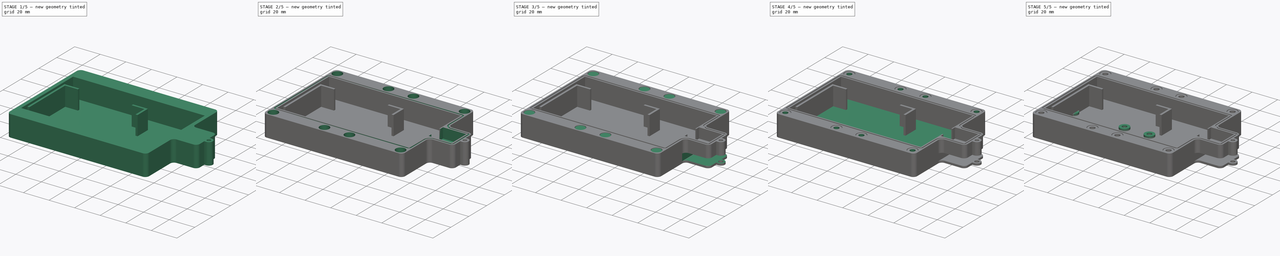
[diagram: build sequence overview — one tinted view per stage of 5, left to right]
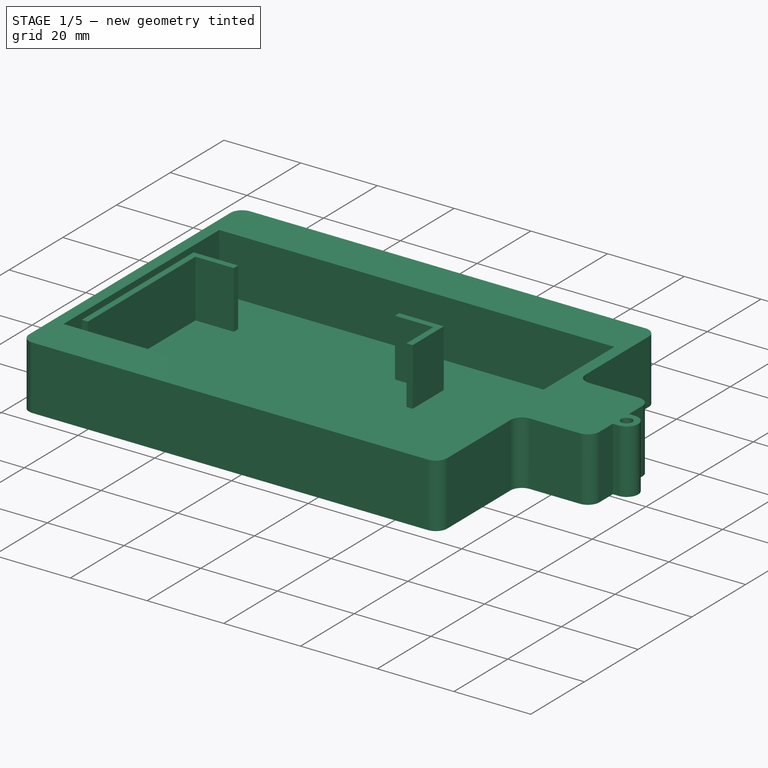
[diagram: stage 1 of 5 — iso view after this stage's code; geometry added in this stage tinted green]
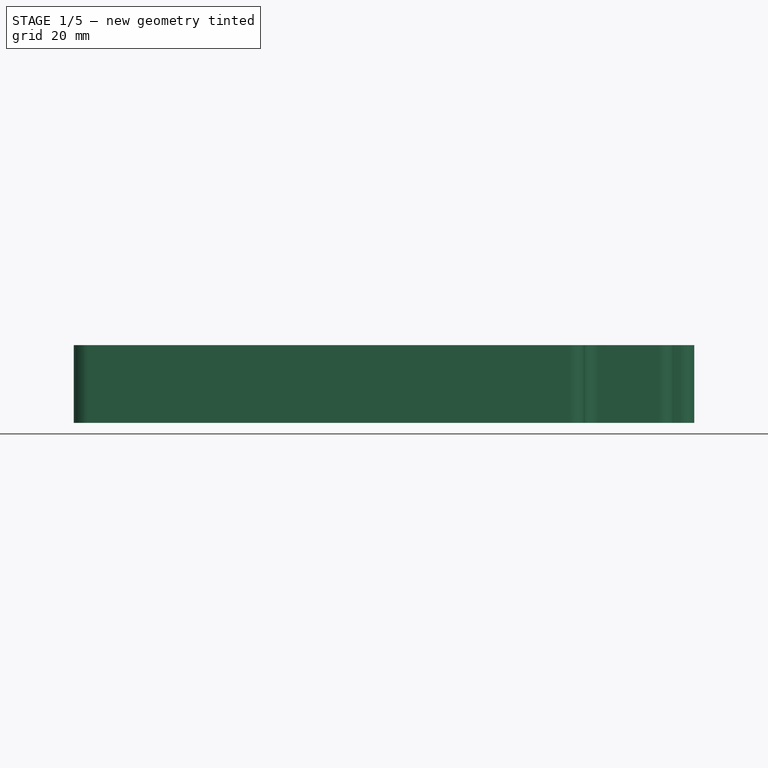
[diagram: stage 1 of 5 — front view after this stage's code; geometry added in this stage tinted green]
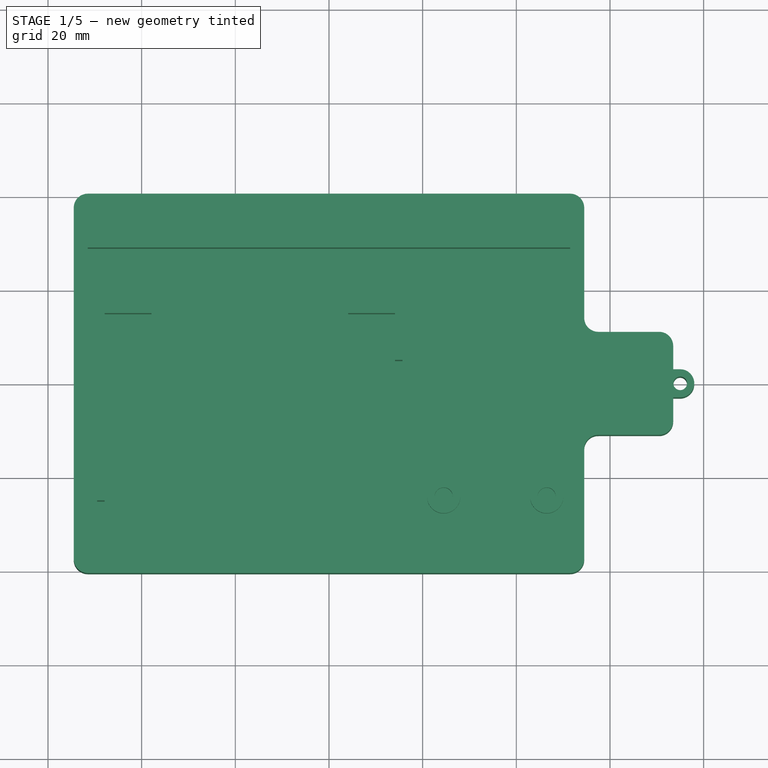
[diagram: stage 1 of 5 — top view after this stage's code; geometry added in this stage tinted green]
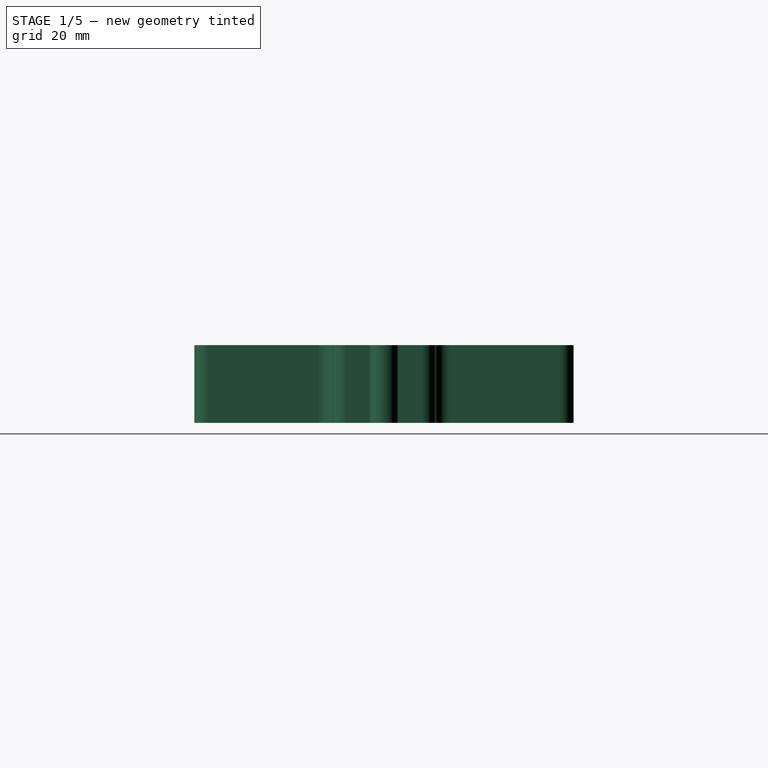
[diagram: stage 1 of 5 — right view after this stage's code; geometry added in this stage tinted green]
FCSTD DOCUMENT  (FreeCAD 0.21R33771 (Git))
Label: RAKTracker-GPS
License: All rights reserved
LicenseURL: http://en.wikipedia.org/wiki/All_rights_reserved
objects: Sketcher::SketchObject×14, PartDesign::Pad×8, PartDesign::Pocket×6, PartDesign::Body×4, PartDesign::Plane×2, PartDesign::Hole×2, Spreadsheet::Sheet×1
note: 52 computed .brp shape members not serialized (recipe doc carries the construction recipe); baked Part::Feature solids carry a one-line shape summary decoded from their .brp

FEATURE [Spreadsheet::Sheet] Spreadsheet  label="RAKTrackerSheet"
  cells = A1='Box Height; B1(BoxHeight)==109 mm; D1='Internal wall thickness; E1(InternalWallThickness)==1.6 mm; I1='TODO; A2='Box Width; B2(BoxWidth)==81 mm; A3='Box Depth; B3(BoxDepth)==15 mm + B6; D3='Wall Thickness next to Lid Hole; E3(WallThicknessNextToLidHole)==1 mm; A4='Outer wall thickness (long); B4(BoxOuterwallLongThickness)==E3 + B5 + B23; D4='StrapDistance; E4(StrapDistance)==40 mm; A5='Outer wall thickness (short); B5(BoxOuterwallShortThickness)==3 mm; D5='StrapThickness; E5(StrapThickness)==2 mm; A6='Box Bottom Height; B6(BoxBottomThickness)==1.6 mm; I6='Make seal grove 1.2mm wide so that there's no issue with the corners?; A7='Box Corner Radius; B7(BoxCornerRadius)==3 mm; I7='Seal grove in the lid?; D8='ScrewHoleSize; E8(ScrewHoleSize)==3 mm; I8='Move to 1.2mm top/bottom. Priints faster and i don't think there's an issue with the strength. Saves 0.8mm in total.; D9='ScrewTapSize; E9(ScrewTapSize)==2.7 mm; A10='PCBWidth; B10(PCBHeight)==31 mm; A11='PCBHeight; B11==36 mm; D11='GPSWidth and Height; E11(GPSWidthAndHeight)==16 mm; A12='PCBDepth; B12(PCBDepth)==14 mm; D12='GPSDepth (with tape); E12(GPSDepth)==8 mm; A13='PCBHole; B13(PCBHole)==3 mm; A14='PCBHoleDistance; B14(PCBHoleDistance)==22 mm; D14='SealWidth; E14(SealWidth)==1 mm; A15='PCBHoleFromEdge; B15(PCBHoleFromEdge)==5 mm; D15='SealDepth; E15(SealDepth)==0.6 mm; A16='PCBDepthToHole; B16(PCBDepthToHole)==4.5 mm; A17='PCBHoleStandDia; B17(PCBHoleStandDia)==5 mm; D17='Lora Antenna Width; E17(LoraAntWidth)==2 mm; D18='Lora Antenna Length; E18==60 mm; A20='PCB Mount Holesize; B20(PCBMountHoleDia)==3.9 mm; D20='BatteryWidth; E20(BatteryWidth)==44 mm; A21='PCH Mount Diameter; B21(PCBMountDia)==7.1 mm; D21='BatteryHeight; E21(BatteryHeight)==62 mm; D22='BatteryDepth; E22==7 mm; A23='Box Lid Hole dia; B23(BoxLidHoleSize)==7.5 mm; A24='Box Lid Hole Depth; B24(BoxLidHoleDepth)==15 mm; D24='SolarPanelHeight; E24(SolarPanelHeight)==101 mm; A25='Box Lid Through Hole Dia; B25(BoxLidThrougHoleDia)==3.5 mm; D25='SolarPanelWidth; E25(SolarPanelWidth)==81 mm; D26='SolarPanelDepth; E26(SolarPanelDepth)==2 mm; A27='Brace Base Thickness; B27(BraceBaseThickness)==1.6 mm; A28='Brace Strap Thickness; B28(BraceStrapThickness)==E5; A30='Lid Hole Diameter; B30(LidHoleDia)==7.1 mm; A31='Lid Thread Diameter; B31(LidThreadDia)==2.9 mm; A32='Lid Thread Depth; B32(LidThreadDepth)==B24 - 3 mm; A33='Lid Hole Length; B33(LidHoleLength)==B24 - B34; A34='Lid Offset Washer; B34==0.3 mm
FEATURE [Sketcher::SketchObject] Sketch  label="BaseSketch"
  FullyConstrained = true
  MapMode = 5
  Support = -> [XY_Plane]
  expr: Constraints[15] = <<RAKTrackerSheet>>.BoxCornerRadius
  expr: Constraints[26] = <<RAKTrackerSheet>>.BoxWidth
  expr: Constraints[4] = <<RAKTrackerSheet>>.BoxHeight
  sketch-geometry (11):
    g0: LineSegment StartX=-51.5 StartY=40.5 StartZ=0 EndX=51.5 EndY=40.5 EndZ=0
    g1: LineSegment StartX=51.5 StartY=-40.5 StartZ=0 EndX=-51.5 EndY=-40.5 EndZ=0
    g2: LineSegment StartX=-54.5 StartY=-37.5 StartZ=0 EndX=-54.5 EndY=37.5 EndZ=0
    g3: ArcOfCircle CenterX=-51.5 CenterY=37.5 CenterZ=0 NormalX=0 NormalY=0 NormalZ=1 AngleXU=0 Radius=3 StartAngle=1.5708 EndAngle=3.14159
    g4: GeomPoint X=-54.5 Y=40.5 Z=0
    g5: ArcOfCircle CenterX=51.5 CenterY=37.5 CenterZ=0 NormalX=0 NormalY=0 NormalZ=1 AngleXU=0 Radius=3 StartAngle=0 EndAngle=1.5708
    g6: GeomPoint X=54.5 Y=40.5 Z=0
    g7: ArcOfCircle CenterX=51.5 CenterY=-37.5 CenterZ=0 NormalX=0 NormalY=0 NormalZ=1 AngleXU=0 Radius=3 StartAngle=4.71239 EndAngle=6.28319
    g8: ArcOfCircle CenterX=-51.5 CenterY=-37.5 CenterZ=0 NormalX=0 NormalY=0 NormalZ=1 AngleXU=0 Radius=3 StartAngle=3.14159 EndAngle=4.71239
    g9: GeomPoint X=-54.5 Y=-40.5 Z=0
    g10: LineSegment StartX=54.5 StartY=37.5 StartZ=0 EndX=54.5 EndY=-37.5 EndZ=0
  constraints (28):
    c: Horizontal(g0)
    c: Horizontal(g1)
    c: Vertical(g2)
    c: Symmetric(g9,g6,g-1)
    c: DistanceX(g4,g6) = 109
    c: PointOnObject(g4,g2)
    c: PointOnObject(g4,g0)
    c: Tangent(g2,g3) = 1.5708
    c: Tangent(g0,g3) = 1.5708
    c: PointOnObject(g6,g0)
    c: Tangent(g0,g5) = 1.5708
    c: PointOnObject(g9,g2)
    c: PointOnObject(g9,g1)
    c: Tangent(g2,g8) = 1.5708
    c: Tangent(g1,g8) = 1.5708
    c: Radius(g3) = 3
    c: Equal(g3,g5)
    c: Equal(g5,g7)
    c: Equal(g7,g8)
    c: Coincident(g10,g5)
    c: Vertical(g6,g5)
    c: Horizontal(g5,g5)
    c: Vertical(g7,g5)
    c: Horizontal(g7,g7)
    c: Coincident(g7,g1)
    c: Vertical(g7,g1)
    c: DistanceY(g1,g0) = 81
    c: Coincident(g7,g10)
FEATURE [PartDesign::Pad] Pad  label="Base"
  Direction = (0,0,1)
  Length = 1.6
  Length2 = 10
  Profile = -> Sketch
  ReferenceAxis = -> Sketch [N_Axis]
  Type = 0
  expr: Length = <<RAKTrackerSheet>>.BoxBottomThickness
FEATURE [Sketcher::SketchObject] Sketch001  label="WallSketch"
  FullyConstrained = true
  MapMode = 5
  Support = -> [XY_Plane]
  expr: Constraints[101] = <<RAKTrackerSheet>>.InternalWallThickness
  expr: Constraints[107] = 40 mm
  expr: Constraints[108] = <<RAKTrackerSheet>>.BatteryWidth
  expr: Constraints[112] = <<RAKTrackerSheet>>.InternalWallThickness
  expr: Constraints[113] = <<RAKTrackerSheet>>.InternalWallThickness
  expr: Constraints[114] = <<RAKTrackerSheet>>.BatteryHeight
  expr: Constraints[115] = <<RAKTrackerSheet>>.LoraAntWidth
  expr: Constraints[15] = <<RAKTrackerSheet>>.BoxHeight
  expr: Constraints[22] = <<RAKTrackerSheet>>.BoxWidth
  expr: Constraints[39] = <<RAKTrackerSheet>>.BoxCornerRadius
  expr: Constraints[3] = <<RAKTrackerSheet>>.BoxCornerRadius
  expr: Constraints[62] = <<RAKTrackerSheet>>.BoxCornerRadius
  expr: Constraints[66] = <<RAKTrackerSheet>>.GPSWidthAndHeight + <<RAKTrackerSheet>>.BoxOuterwallShortThickness
  expr: Constraints[69] = <<RAKTrackerSheet>>.GPSWidthAndHeight + <<RAKTrackerSheet>>.BoxOuterwallShortThickness * 2
  expr: Constraints[76] = <<RAKTrackerSheet>>.BoxOuterwallShortThickness
  expr: Constraints[77] = <<RAKTrackerSheet>>.BoxOuterwallLongThickness
  sketch-geometry (37):
    g0: LineSegment StartX=-51.5 StartY=40.5 StartZ=0 EndX=51.5 EndY=40.5 EndZ=0
    g1: LineSegment StartX=51.5 StartY=-40.5 StartZ=0 EndX=-51.5 EndY=-40.5 EndZ=0
    g2: LineSegment StartX=-54.5 StartY=-37.5 StartZ=0 EndX=-54.5 EndY=37.5 EndZ=0
    g3: ArcOfCircle CenterX=-51.5 CenterY=37.5 CenterZ=0 NormalX=0 NormalY=0 NormalZ=1 AngleXU=0 Radius=3 StartAngle=1.5708 EndAngle=3.14159
    g4: ArcOfCircle CenterX=51.5 CenterY=37.5 CenterZ=0 NormalX=0 NormalY=0 NormalZ=1 AngleXU=0 Radius=3 StartAngle=0 EndAngle=1.5708
    g5: ArcOfCircle CenterX=51.5 CenterY=-37.5 CenterZ=0 NormalX=0 NormalY=0 NormalZ=1 AngleXU=0 Radius=3 StartAngle=4.71239 EndAngle=6.28319
    g6: ArcOfCircle CenterX=-51.5 CenterY=-37.5 CenterZ=0 NormalX=0 NormalY=0 NormalZ=1 AngleXU=0 Radius=3 StartAngle=3.14159 EndAngle=4.71239
    g7: LineSegment StartX=54.5 StartY=-37.5 StartZ=0 EndX=54.5 EndY=-14 EndZ=0
    g8: LineSegment StartX=54.5 StartY=37.5 StartZ=0 EndX=54.5 EndY=14 EndZ=0
    g9: LineSegment StartX=57.5 StartY=11 StartZ=0 EndX=70.5 EndY=11 EndZ=0
    g10: LineSegment StartX=70.5 StartY=-11 StartZ=0 EndX=57.5 EndY=-11 EndZ=0
    g11: ArcOfCircle CenterX=57.5 CenterY=14 CenterZ=0 NormalX=0 NormalY=0 NormalZ=1 AngleXU=0 Radius=3 StartAngle=3.14159 EndAngle=4.71239
    g12: ArcOfCircle CenterX=70.5 CenterY=8 CenterZ=0 NormalX=0 NormalY=0 NormalZ=1 AngleXU=0 Radius=3 StartAngle=0 EndAngle=1.5708
    g13: ArcOfCircle CenterX=70.5 CenterY=-8 CenterZ=0 NormalX=0 NormalY=0 NormalZ=1 AngleXU=0 Radius=3 StartAngle=4.71239 EndAngle=6.28319
    g14: ArcOfCircle CenterX=57.5 CenterY=-14 CenterZ=0 NormalX=0 NormalY=0 NormalZ=1 AngleXU=0 Radius=3 StartAngle=1.5708 EndAngle=3.14159
    g15: LineSegment StartX=73.5 StartY=8 StartZ=0 EndX=73.5 EndY=3 EndZ=0
    g16: LineSegment StartX=73.5 StartY=3 StartZ=0 EndX=75 EndY=3 EndZ=0
    g17: LineSegment StartX=73.5 StartY=-8 StartZ=0 EndX=73.5 EndY=-3 EndZ=0
    g18: LineSegment StartX=73.5 StartY=-3 StartZ=0 EndX=75 EndY=-3 EndZ=0
    g19: ArcOfCircle CenterX=75 CenterY=0 CenterZ=0 NormalX=0 NormalY=0 NormalZ=1 AngleXU=0 Radius=3 StartAngle=4.71239 EndAngle=7.85398
    g20: Circle CenterX=75 CenterY=0 CenterZ=0 NormalX=0 NormalY=0 NormalZ=1 AngleXU=0 Radius=1.45
    g21: LineSegment StartX=-51.5 StartY=29 StartZ=0 EndX=51.5 EndY=29 EndZ=0
    g22: LineSegment StartX=-51.5 StartY=-29 StartZ=0 EndX=-51.5 EndY=29 EndZ=0
    g23: LineSegment StartX=-49.5 StartY=16.6 StartZ=0 EndX=-37.9 EndY=16.6 EndZ=0
    g24: LineSegment StartX=-37.9 StartY=16.6 StartZ=0 EndX=-37.9 EndY=15 EndZ=0
    g25: LineSegment StartX=-37.9 StartY=15 StartZ=0 EndX=-47.9 EndY=15 EndZ=0
    g26: LineSegment StartX=-47.9 StartY=15 StartZ=0 EndX=-47.9 EndY=-25 EndZ=0
    g27: LineSegment StartX=-47.9 StartY=-25 StartZ=0 EndX=-49.5 EndY=-25 EndZ=0
    g28: LineSegment StartX=-49.5 StartY=-25 StartZ=0 EndX=-49.5 EndY=16.6 EndZ=0
    g29: LineSegment StartX=4.1 StartY=16.6 StartZ=0 EndX=15.7 EndY=16.6 EndZ=0
    g30: LineSegment StartX=15.7 StartY=16.6 StartZ=0 EndX=15.7 EndY=5 EndZ=0
    g31: LineSegment StartX=15.7 StartY=5 StartZ=0 EndX=14.1 EndY=5 EndZ=0
    g32: LineSegment StartX=14.1 StartY=5 StartZ=0 EndX=14.1 EndY=15 EndZ=0
    g33: LineSegment StartX=14.1 StartY=15 StartZ=0 EndX=4.1 EndY=15 EndZ=0
    g34: LineSegment StartX=4.1 StartY=15 StartZ=0 EndX=4.1 EndY=16.6 EndZ=0
    g35: LineSegment StartX=51.5 StartY=-29 StartZ=0 EndX=-51.5 EndY=-29 EndZ=0
    g36: LineSegment StartX=51.5 StartY=29 StartZ=0 EndX=51.5 EndY=-29 EndZ=0
  constraints (117):
    c: Horizontal(g0)
    c: Horizontal(g1)
    c: Vertical(g2)
    c: Radius(g3) = 3
    c: Coincident(g3,g0)
    c: Coincident(g3,g2)
    c: Vertical(g0,g3)
    c: Horizontal(g3,g2)
    c: Equal(g3,g4)
    c: Equal(g3,g5)
    c: Equal(g5,g6)
    c: Coincident(g6,g2)
    c: Coincident(g6,g1)
    c: Coincident(g5,g1)
    c: Coincident(g0,g4)
    c: DistanceX(g2,g4) = 109
    c: Vertical(g4,g0)
    c: Horizontal(g4,g4)
    c: Horizontal(g5,g5)
    c: Vertical(g5,g1)
    c: Vertical(g6,g1)
    c: Horizontal(g6,g2)
    c: DistanceY(g1,g0) = 81
    c: Symmetric(g3,g5,g-1)
    c: Coincident(g7,g5)
    c: Vertical(g7)
    c: Coincident(g8,g4)
    c: Vertical(g8)
    c: Horizontal(g9)
    c: Coincident(g11,g8)
    c: Coincident(g11,g9)
    c: Coincident(g12,g9)
    c: Coincident(g13,g10)
    c: Coincident(g14,g10)
    c: Coincident(g14,g7)
    c: Horizontal(g10)
    c: Equal(g12,g13)
    c: Equal(g12,g14)
    c: Equal(g12,g11)
    c: Radius(g12) = 3
    c: Horizontal(g11,g8)
    c: Vertical(g11,g9)
    c: Vertical(g14,g10)
    c: Horizontal(g14,g7)
    c: Vertical(g13,g10)
    c: Horizontal(g13,g13)
    c: Vertical(g12,g9)
    c: Horizontal(g12,g12)
    c: Coincident(g15,g12)
    c: Vertical(g15)
    c: Coincident(g16,g15)
    c: Horizontal(g16)
    c: Coincident(g17,g13)
    c: Vertical(g17)
    c: Coincident(g18,g17)
    c: Horizontal(g18)
    c: Coincident(g19,g18)
    c: Vertical(g16,g19)
    c: Vertical(g19,g18)
    c: PointOnObject(g19,g-1)
    c: Coincident(g19,g16)
    c: Vertical(g15,g17)
    c: Radius(g19) = 3
    c: Coincident(g20,g19)
    c: Diameter(g20) = 2.9
    c: DistanceX(g16,g16) = 1.5
    c: DistanceX(g8,g12) = 19
    c: Vertical(g8,g7)
    c: Equal(g8,g7)
    c: DistanceY(g10,g9) = 22
    c: Coincident(g21,g36)
    c: Coincident(g35,g22)
    c: Coincident(g22,g21)
    c: Horizontal(g21)
    c: Vertical(g22)
    c: Symmetric(g36,g21,g-1)
    c: DistanceX(g2,g21) = 3
    c: DistanceY(g1,g35) = 11.5
    c: Horizontal(g23)
    c: Coincident(g24,g23)
    c: Vertical(g24)
    c: Coincident(g25,g24)
    c: Horizontal(g25)
    c: Coincident(g26,g25)
    c: Vertical(g26)
    c: Coincident(g27,g26)
    c: Horizontal(g27)
    c: Coincident(g28,g23)
    c: Coincident(g30,g29)
    c: Vertical(g30)
    c: Coincident(g31,g30)
    c: Coincident(g32,g31)
    c: Coincident(g33,g32)
    c: Horizontal(g33)
    c: Coincident(g34,g33)
    c: Coincident(g34,g29)
    c: Vertical(g28)
    c: Horizontal(g29)
    c: Vertical(g32)
    c: Vertical(g34)
    c: Horizontal(g31)
    c: DistanceY(g24,g24) = 1.6
    c: Horizontal(g23,g29)
    c: Horizontal(g24,g33)
    c: Coincident(g28,g27)
    c: DistanceX(g25,g25) = 10
    c: Equal(g25,g33)
    c: DistanceY(g26,g26) = 40
    c: DistanceY(g35,g24) = 44
    c: Horizontal(g35)
    c: Vertical(g36)
    c: Coincident(g35,g36)
    c: DistanceX(g27,g27) = 1.6
    c: DistanceX(g31,g31) = 1.6
    c: DistanceX(g26,g31) = 62
    c: DistanceX(g21,g23) = 2
    c: DistanceY(g32,g32) = 10
FEATURE [PartDesign::Pad] Pad001  label="Walls"
  BaseFeature = -> Pad
  Direction = (0,0,1)
  Length = 16.6
  Length2 = 10
  Profile = -> Sketch001
  ReferenceAxis = -> Sketch001 [N_Axis]
  Type = 0
  expr: Length = <<RAKTrackerSheet>>.BoxDepth
FEATURE [Sketcher::SketchObject] Sketch002  label="PCHMountSketch"
  ExternalGeometry = -> [Sketch001]
  FullyConstrained = true
  MapMode = 5
  Support = -> [XY_Plane]
  expr: Constraints[1] = <<RAKTrackerSheet>>.PCBHoleDistance
  expr: Constraints[6] = <<RAKTrackerSheet>>.PCBMountDia
  expr: Constraints[7] = <<RAKTrackerSheet>>.PCBMountHoleDia
  expr: Constraints[8] = <<RAKTrackerSheet>>.PCBHoleFromEdge
  expr: Constraints[9] = <<RAKTrackerSheet>>.PCBHoleFromEdge
  sketch-geometry (4):
    g0: Circle CenterX=24.5 CenterY=-24 CenterZ=0 NormalX=0 NormalY=0 NormalZ=1 AngleXU=0 Radius=3.55
    g1: Circle CenterX=46.5 CenterY=-24 CenterZ=0 NormalX=0 NormalY=0 NormalZ=1 AngleXU=0 Radius=3.55
    g2: Circle CenterX=24.5 CenterY=-24 CenterZ=0 NormalX=0 NormalY=0 NormalZ=1 AngleXU=0 Radius=1.95
    g3: Circle CenterX=46.5 CenterY=-24 CenterZ=0 NormalX=0 NormalY=0 NormalZ=1 AngleXU=0 Radius=1.95
  constraints (10):
    c: Horizontal(g1,g0)
    c: DistanceX(g0,g1) = 22
    c: Equal(g1,g0)
    c: Coincident(g2,g0)
    c: Coincident(g3,g1)
    c: Equal(g3,g2)
    c: Diameter(g0) = 7.1
    c: Diameter(g2) = 3.9
    c: DistanceX(g1,g-3) = 5
    c: DistanceY(g-3,g1) = 5
FEATURE [PartDesign::Pad] Pad002  label="PCBMount"
  BaseFeature = -> Pad001
  Direction = (0,0,1)
  Length = 6.1
  Length2 = 10
  Profile = -> Sketch002
  ReferenceAxis = -> Sketch002 [N_Axis]
  Type = 0
  expr: Length = <<RAKTrackerSheet>>.BoxBottomThickness + <<RAKTrackerSheet>>.PCBDepthToHole
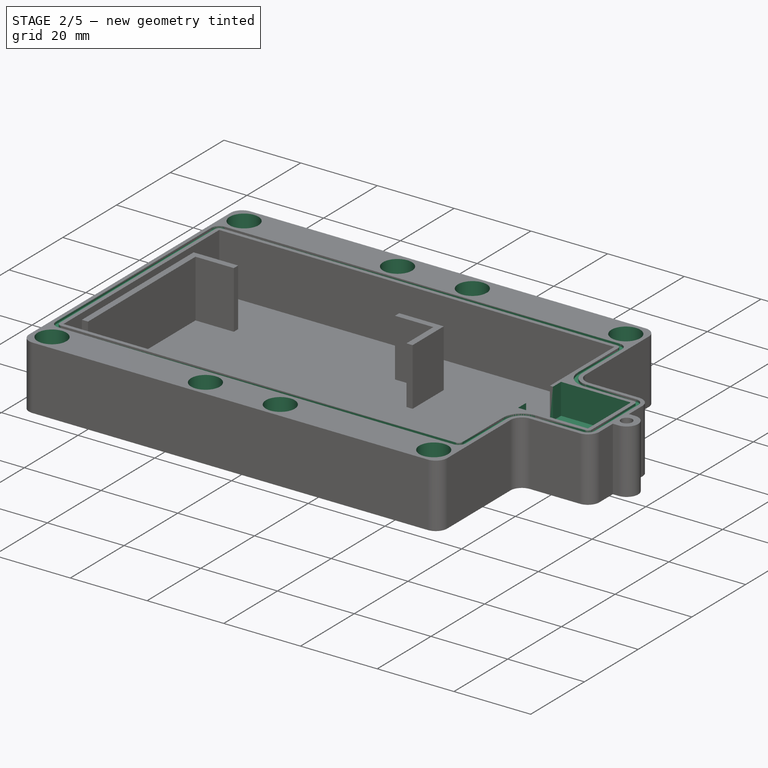
[diagram: stage 2 of 5 — iso view after this stage's code; geometry added in this stage tinted green]
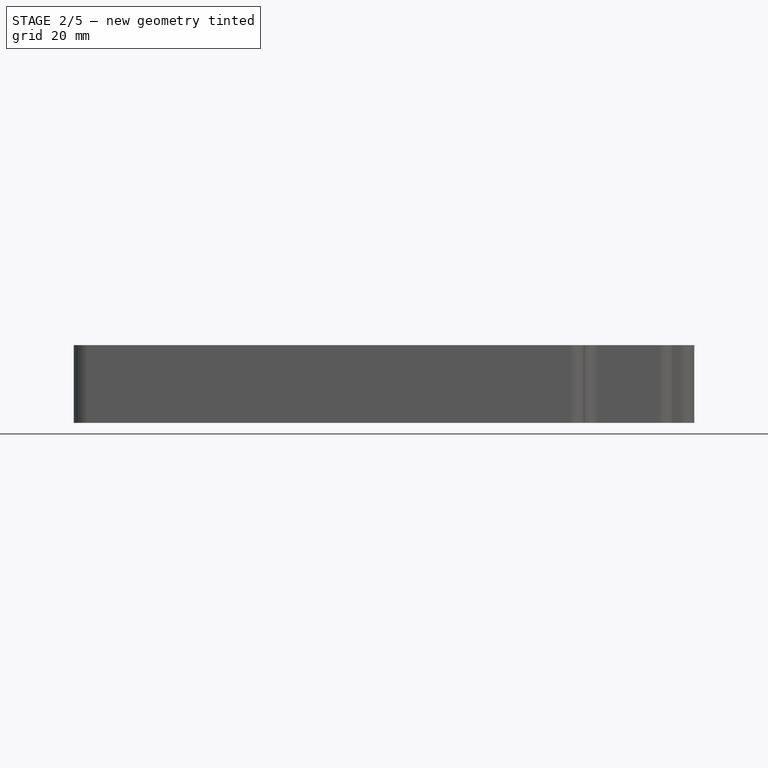
[diagram: stage 2 of 5 — front view after this stage's code; geometry added in this stage tinted green]
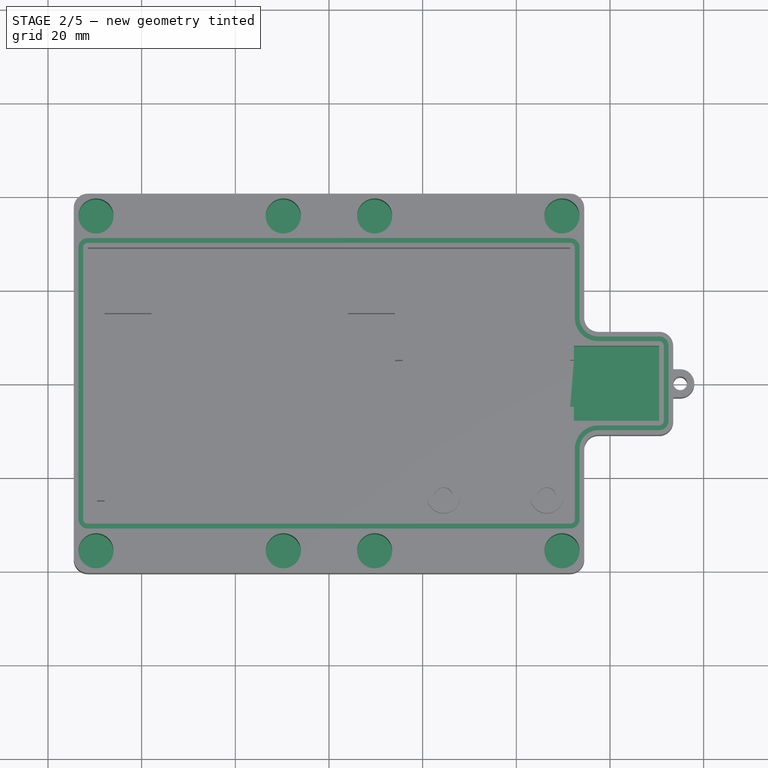
[diagram: stage 2 of 5 — top view after this stage's code; geometry added in this stage tinted green]
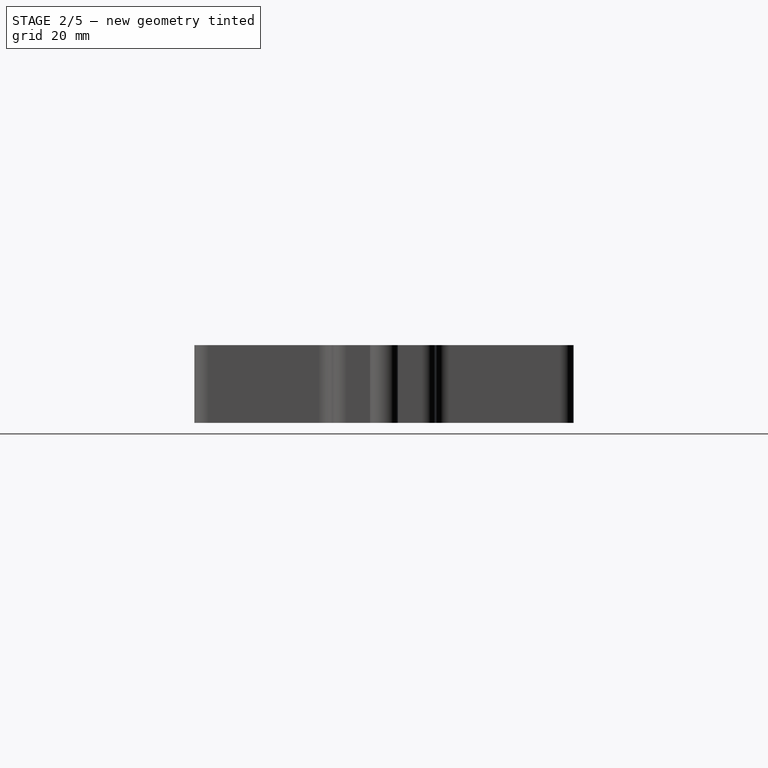
[diagram: stage 2 of 5 — right view after this stage's code; geometry added in this stage tinted green]
FEATURE [PartDesign::Plane] DatumPlane  label="TopOfBox"
  Length = 153.196
  MapMode = 2
  Placement = pos=(0,0,16.6) rot=(0,0,1;0rad)
  ResizeMode = 0
  Width = 101.718
  expr: .Placement.Base.z = <<Walls>>.Length
FEATURE [Sketcher::SketchObject] Sketch004  label="SealSketch"
  ExternalGeometry = -> [Sketch001]
  FullyConstrained = true
  MapMode = 5
  Placement = pos=(0,0,16.6) rot=(0,0,1;0rad)
  Support = -> [DatumPlane]
  expr: Constraints[55] = <<RAKTrackerSheet>>.SealWidth
  sketch-geometry (32):
    g0: LineSegment StartX=-53.5 StartY=29 StartZ=0 EndX=-53.5 EndY=-29 EndZ=0
    g1: LineSegment StartX=-52.5 StartY=29 StartZ=0 EndX=-52.5 EndY=-29 EndZ=0
    g2: LineSegment StartX=-51.5 StartY=-30 StartZ=0 EndX=51.5 EndY=-30 EndZ=0
    g3: LineSegment StartX=-51.5 StartY=30 StartZ=0 EndX=51.5 EndY=30 EndZ=0
    g4: ArcOfCircle CenterX=-51.5 CenterY=29 CenterZ=0 NormalX=0 NormalY=0 NormalZ=1 AngleXU=0 Radius=1 StartAngle=1.5708 EndAngle=3.14159
    g5: LineSegment StartX=53.5 StartY=29 StartZ=0 EndX=53.5 EndY=14 EndZ=0
    g6: LineSegment StartX=52.5 StartY=29 StartZ=0 EndX=52.5 EndY=14 EndZ=0
    g7: LineSegment StartX=71.5 StartY=8 StartZ=0 EndX=71.5 EndY=-8 EndZ=0
    g8: LineSegment StartX=70.5 StartY=10 StartZ=0 EndX=57.5 EndY=10 EndZ=0
    g9: LineSegment StartX=57.5 StartY=9 StartZ=0 EndX=70.5 EndY=9 EndZ=0
    g10: ArcOfCircle CenterX=70.5 CenterY=8 CenterZ=0 NormalX=0 NormalY=0 NormalZ=1 AngleXU=0 Radius=1 StartAngle=0 EndAngle=1.5708
    g11: ArcOfCircle CenterX=57.5 CenterY=14 CenterZ=0 NormalX=0 NormalY=0 NormalZ=1 AngleXU=0 Radius=5 StartAngle=3.14159 EndAngle=4.71239
    g12: ArcOfCircle CenterX=51.5 CenterY=29 CenterZ=0 NormalX=0 NormalY=0 NormalZ=1 AngleXU=0 Radius=1 StartAngle=6.28319 EndAngle=7.85398
    g13: LineSegment StartX=-51.5 StartY=31 StartZ=0 EndX=51.5 EndY=31 EndZ=0
    g14: ArcOfCircle CenterX=-51.5 CenterY=-29 CenterZ=0 NormalX=0 NormalY=0 NormalZ=1 AngleXU=0 Radius=1 StartAngle=3.14159 EndAngle=4.71239
    g15: ArcOfCircle CenterX=-51.5 CenterY=29 CenterZ=0 NormalX=0 NormalY=0 NormalZ=1 AngleXU=0 Radius=2 StartAngle=1.5708 EndAngle=3.14159
    g16: ArcOfCircle CenterX=51.5 CenterY=29 CenterZ=0 NormalX=0 NormalY=0 NormalZ=1 AngleXU=0 Radius=2 StartAngle=6.28319 EndAngle=7.85398
    g17: ArcOfCircle CenterX=57.5 CenterY=14 CenterZ=0 NormalX=0 NormalY=0 NormalZ=1 AngleXU=0 Radius=4 StartAngle=3.14159 EndAngle=4.71239
    g18: LineSegment StartX=72.5 StartY=8 StartZ=0 EndX=72.5 EndY=-8 EndZ=0
    g19: LineSegment StartX=-51.5 StartY=-31 StartZ=0 EndX=51.5 EndY=-31 EndZ=0
    g20: ArcOfCircle CenterX=70.5 CenterY=8 CenterZ=0 NormalX=0 NormalY=0 NormalZ=1 AngleXU=0 Radius=2 StartAngle=0 EndAngle=1.5708
    g21: ArcOfCircle CenterX=51.5 CenterY=-29 CenterZ=0 NormalX=0 NormalY=0 NormalZ=1 AngleXU=0 Radius=1 StartAngle=4.71239 EndAngle=6.28319
    g22: ArcOfCircle CenterX=51.5 CenterY=-29 CenterZ=0 NormalX=0 NormalY=0 NormalZ=1 AngleXU=0 Radius=2 StartAngle=4.71239 EndAngle=6.28319
    g23: ArcOfCircle CenterX=-51.5 CenterY=-29 CenterZ=0 NormalX=0 NormalY=0 NormalZ=1 AngleXU=0 Radius=2 StartAngle=3.14159 EndAngle=4.71239
    g24: LineSegment StartX=57.5 StartY=-9 StartZ=0 EndX=70.5 EndY=-9 EndZ=0
    g25: LineSegment StartX=70.5 StartY=-10 StartZ=0 EndX=57.5 EndY=-10 EndZ=0
    g26: LineSegment StartX=52.5 StartY=-14 StartZ=0 EndX=52.5 EndY=-29 EndZ=0
    g27: LineSegment StartX=53.5 StartY=-29 StartZ=0 EndX=53.5 EndY=-14 EndZ=0
    g28: ArcOfCircle CenterX=57.5 CenterY=-14 CenterZ=0 NormalX=0 NormalY=0 NormalZ=1 AngleXU=0 Radius=4 StartAngle=1.5708 EndAngle=3.14159
    g29: ArcOfCircle CenterX=57.5 CenterY=-14 CenterZ=0 NormalX=0 NormalY=0 NormalZ=1 AngleXU=0 Radius=5 StartAngle=1.5708 EndAngle=3.14159
    g30: ArcOfCircle CenterX=70.5 CenterY=-8 CenterZ=0 NormalX=0 NormalY=0 NormalZ=1 AngleXU=0 Radius=1 StartAngle=4.71239 EndAngle=6.28319
    g31: ArcOfCircle CenterX=70.5 CenterY=-8 CenterZ=0 NormalX=0 NormalY=0 NormalZ=1 AngleXU=0 Radius=2 StartAngle=4.71239 EndAngle=6.28319
  constraints (101):
    c: Vertical(g0)
    c: Horizontal(g2)
    c: Vertical(g1)
    c: Horizontal(g3)
    c: Vertical(g5)
    c: Vertical(g7)
    c: Horizontal(g8)
    c: Horizontal(g9)
    c: Coincident(g10,g9)
    c: Coincident(g10,g7)
    c: Coincident(g11,g6)
    c: Coincident(g11,g9)
    c: Horizontal(g1,g0)
    c: Horizontal(g6,g5)
    c: Coincident(g12,g3)
    c: Coincident(g12,g6)
    c: Vertical(g6)
    c: Vertical(g9,g8)
    c: Horizontal(g13)
    c: Coincident(g14,g1)
    c: Coincident(g14,g2)
    c: Coincident(g15,g0)
    c: Coincident(g15,g13)
    c: Coincident(g16,g13)
    c: Coincident(g16,g5)
    c: Coincident(g16,g12)
    c: Coincident(g17,g5)
    c: Coincident(g17,g8)
    c: Horizontal(g19)
    c: Coincident(g20,g8)
    c: Coincident(g20,g18)
    c: Coincident(g20,g10)
    c: Coincident(g21,g2)
    c: Coincident(g22,g19)
    c: Coincident(g22,g21)
    c: Coincident(g23,g0)
    c: Coincident(g23,g19)
    c: Coincident(g23,g14)
    c: Coincident(g15,g4)
    c: Vertical(g4,g13)
    c: Coincident(g3,g4)
    c: Coincident(g4,g1)
    c: Vertical(g4,g3)
    c: Horizontal(g4,g1)
    c: Horizontal(g4,g0)
    c: Vertical(g2,g19)
    c: Vertical(g18)
    c: Vertical(g19,g2)
    c: Horizontal(g7,g18)
    c: Horizontal(g7,g10)
    c: Horizontal(g6,g5)
    c: Vertical(g8,g9)
    c: Coincident(g11,g17)
    c: Coincident(g4,g-4)
    c: Coincident(g14,g-6)
    c: DistanceY(g3,g13) = 1
    c: Horizontal(g5,g-5)
    c: Vertical(g8,g-7)
    c: Vertical(g8,g-7)
    c: Horizontal(g18,g-9)
    c: Vertical(g2,g-11)
    c: Horizontal(g14,g1)
    c: Vertical(g14,g2)
    c: Horizontal(g7,g18)
    c: Horizontal(g-10,g18)
    c: Vertical(g-7,g10)
    c: Horizontal(g-5,g11)
    c: Vertical(g8,g11)
    c: Vertical(g13,g3)
    c: Horizontal(g22,g21)
    c: Horizontal(g21,g-11)
    c: Coincident(g21,g-11)
    c: Horizontal(g24)
    c: Horizontal(g25)
    c: Coincident(g26,g21)
    c: Vertical(g26)
    c: Coincident(g27,g22)
    c: Vertical(g27)
    c: Horizontal(g27,g26)
    c: Vertical(g24,g25)
    c: Vertical(g24,g25)
    c: Coincident(g28,g27)
    c: Coincident(g28,g25)
    c: Coincident(g29,g26)
    c: Coincident(g29,g24)
    c: Coincident(g28,g29)
    c: Coincident(g30,g24)
    c: Coincident(g30,g7)
    c: Coincident(g31,g25)
    c: Coincident(g31,g18)
    c: Coincident(g31,g30)
    c: Vertical(g25,g-8)
    c: Horizontal(g7,g30)
    c: Vertical(g24,g30)
    c: Vertical(g25,g-8)
    c: Vertical(g28,g-8)
    c: Horizontal(g27,g-3)
    c: Horizontal(g-3,g28)
    c: Horizontal(g6,g-11)
    c: Vertical(g16,g3)
    c: Radius(g15) = 2
FEATURE [PartDesign::Pocket] Pocket001  label="SealPocket"
  BaseFeature = -> Pad002
  Direction = (0,0,-1)
  Length = 0.6
  Length2 = 5
  Profile = -> Sketch004
  ReferenceAxis = -> Sketch004 [N_Axis]
  Refine = true
  Type = 0
  expr: Length = <<RAKTrackerSheet>>.SealDepth
FEATURE [PartDesign::Body] Body002  label="Lid"
  Group = -> [Sketch007,Pad005,Sketch008,Pad006,DatumPlane001,Sketch009,Pocket002,Sketch011,Pocket003]
  Origin = -> Origin002
  Placement = pos=(0,-5.1e-14,38) rot=(1,0,0;3.14159rad)
  Tip = -> Pocket003
FEATURE [Sketcher::SketchObject] Sketch012  label="GPSMountSketch"
  ExternalGeometry = -> [Sketch001]
  FullyConstrained = true
  MapMode = 5
  Placement = pos=(0,0,16.6) rot=(0,0,1;0rad)
  Support = -> [DatumPlane]
  expr: Constraints[18] = <<RAKTrackerSheet>>.InternalWallThickness / 2
  expr: Constraints[22] = <<RAKTrackerSheet>>.GPSWidthAndHeight - <<RAKTrackerSheet>>.BoxOuterwallShortThickness * 2
  expr: Constraints[23] = <<RAKTrackerSheet>>.BoxOuterwallShortThickness
  expr: Constraints[6] = <<RAKTrackerSheet>>.BoxOuterwallShortThickness
  expr: Constraints[7] = <<RAKTrackerSheet>>.GPSWidthAndHeight
  sketch-geometry (8):
    g0: LineSegment StartX=70.5 StartY=8 StartZ=0 EndX=70.5 EndY=-8 EndZ=0
    g1: LineSegment StartX=52.3 StartY=5 StartZ=0 EndX=51.5 EndY=5 EndZ=0
    g2: LineSegment StartX=51.5 StartY=5 StartZ=0 EndX=51.5 EndY=-5 EndZ=0
    g3: LineSegment StartX=51.5 StartY=-5 StartZ=0 EndX=52.3 EndY=-5 EndZ=0
    g4: LineSegment StartX=52.3 StartY=5 StartZ=0 EndX=52.3 EndY=8 EndZ=0
    g5: LineSegment StartX=52.3 StartY=8 StartZ=0 EndX=70.5 EndY=8 EndZ=0
    g6: LineSegment StartX=70.5 StartY=-8 StartZ=0 EndX=52.3 EndY=-8 EndZ=0
    g7: LineSegment StartX=52.3 StartY=-8 StartZ=0 EndX=52.3 EndY=-5 EndZ=0
  constraints (24):
    c: Coincident(g0,g5)
    c: Vertical(g0)
    c: Coincident(g6,g0)
    c: Coincident(g1,g4)
    c: Coincident(g3,g7)
    c: Vertical(g5,g-4)
    c: DistanceY(g5,g-4) = 3
    c: DistanceY(g0,g5) = 16
    c: Coincident(g1,g2)
    c: Coincident(g2,g3)
    c: Coincident(g4,g5)
    c: Horizontal(g5)
    c: Coincident(g6,g7)
    c: Horizontal(g6)
    c: Horizontal(g3)
    c: Vertical(g4)
    c: Vertical(g7)
    c: Horizontal(g1)
    c: DistanceX(g1,g1) = 0.8
    c: PointOnObject(g1,g-3)
    c: PointOnObject(g2,g-3)
    c: Vertical(g1,g3)
    c: DistanceY(g2,g2) = 10
    c: DistanceY(g1,g4) = 3
FEATURE [PartDesign::Pocket] Pocket  label="GPSMountPocket"
  BaseFeature = -> Pocket001
  Direction = (0,0,-1)
  Length = 8
  Length2 = 5
  Profile = -> Sketch012
  ReferenceAxis = -> Sketch012 [N_Axis]
  Type = 0
  expr: Length = <<RAKTrackerSheet>>.GPSDepth
FEATURE [Sketcher::SketchObject] Sketch013
  FullyConstrained = true
  MapMode = 5
  Placement = pos=(0,0,16.6) rot=(0,0,1;0rad)
  Support = -> [DatumPlane]
  expr: Constraints[10] = <<RAKTrackerSheet>>.BoxWidth
  expr: Constraints[19] = <<RAKTrackerSheet>>.StrapDistance
  expr: Constraints[20] = <<RAKTrackerSheet>>.StrapDistance
  expr: Constraints[28] = <<RAKTrackerSheet>>.BoxLidHoleSize
  expr: Constraints[31] = <<RAKTrackerSheet>>.BoxLidHoleSize / 2 + <<RAKTrackerSheet>>.WallThicknessNextToLidHole
  expr: Constraints[32] = <<RAKTrackerSheet>>.BoxLidHoleSize / 2 + <<RAKTrackerSheet>>.WallThicknessNextToLidHole
  expr: Constraints[33] = <<RAKTrackerSheet>>.BoxLidHoleSize / 2 + <<RAKTrackerSheet>>.WallThicknessNextToLidHole
  expr: Constraints[34] = <<RAKTrackerSheet>>.BoxLidHoleSize / 2 + <<RAKTrackerSheet>>.WallThicknessNextToLidHole
  expr: Constraints[9] = <<RAKTrackerSheet>>.BoxHeight
  sketch-geometry (12):
    g0: LineSegment StartX=-54.5 StartY=40.5 StartZ=0 EndX=54.5 EndY=40.5 EndZ=0
    g1: LineSegment StartX=54.5 StartY=40.5 StartZ=0 EndX=54.5 EndY=-40.5 EndZ=0
    g2: LineSegment StartX=54.5 StartY=-40.5 StartZ=0 EndX=-54.5 EndY=-40.5 EndZ=0
    g3: LineSegment StartX=-54.5 StartY=-40.5 StartZ=0 EndX=-54.5 EndY=40.5 EndZ=0
    g4: Circle CenterX=-49.75 CenterY=35.75 CenterZ=0 NormalX=0 NormalY=0 NormalZ=1 AngleXU=0 Radius=3.75
    g5: Circle CenterX=-9.75 CenterY=35.75 CenterZ=0 NormalX=0 NormalY=0 NormalZ=1 AngleXU=0 Radius=3.75
    g6: Circle CenterX=9.75 CenterY=35.75 CenterZ=0 NormalX=0 NormalY=0 NormalZ=1 AngleXU=0 Radius=3.75
    g7: Circle CenterX=49.75 CenterY=35.75 CenterZ=0 NormalX=0 NormalY=0 NormalZ=1 AngleXU=0 Radius=3.75
    g8: Circle CenterX=49.75 CenterY=-35.75 CenterZ=0 NormalX=0 NormalY=0 NormalZ=1 AngleXU=0 Radius=3.75
    g9: Circle CenterX=9.75 CenterY=-35.75 CenterZ=0 NormalX=0 NormalY=0 NormalZ=1 AngleXU=0 Radius=3.75
    g10: Circle CenterX=-9.75 CenterY=-35.75 CenterZ=0 NormalX=0 NormalY=0 NormalZ=1 AngleXU=0 Radius=3.75
    g11: Circle CenterX=-49.75 CenterY=-35.75 CenterZ=0 NormalX=0 NormalY=0 NormalZ=1 AngleXU=0 Radius=3.75
  constraints (29):
    c: Coincident(g0,g1)
    c: Coincident(g1,g2)
    c: Coincident(g2,g3)
    c: Coincident(g3,g0)
    c: Horizontal(g0)
    c: Horizontal(g2)
    c: Vertical(g1)
    c: Vertical(g3)
    c: Symmetric(g0,g1,g-1)
    c: DistanceX(g0,g0) = 109
    c: DistanceY(g1,g1) = 81
    c: Horizontal(g4,g5)
    c: Horizontal(g5,g6)
    c: Horizontal(g6,g7)
    c: Horizontal(g11,g10)
    c: Horizontal(g10,g9)
    c: Horizontal(g9,g8)
    c: Vertical(g4,g11)
    c: Vertical(g7,g8)
    c: DistanceX(g6,g7) = 40
    c: DistanceX(g4,g5) = 40
    c: Equal(g4, g5-g11) x7
    c: Diameter(g4) = 7.5
    c: Vertical(g6,g9)
    c: Vertical(g10,g5)
    c: DistanceY(g4,g0) = 4.75
    c: DistanceX(g0,g4) = 4.75
    c: DistanceX(g8,g1) = 4.75
    c: DistanceY(g1,g8) = 4.75
FEATURE [PartDesign::Pocket] Pocket004  label="BoxLidHoles"
  BaseFeature = -> Pocket
  Direction = (0,0,-1)
  Length = 15
  Length2 = 5
  Profile = -> Sketch013
  ReferenceAxis = -> Sketch013 [N_Axis]
  Type = 0
  expr: Length = <<RAKTrackerSheet>>.BoxLidHoleDepth
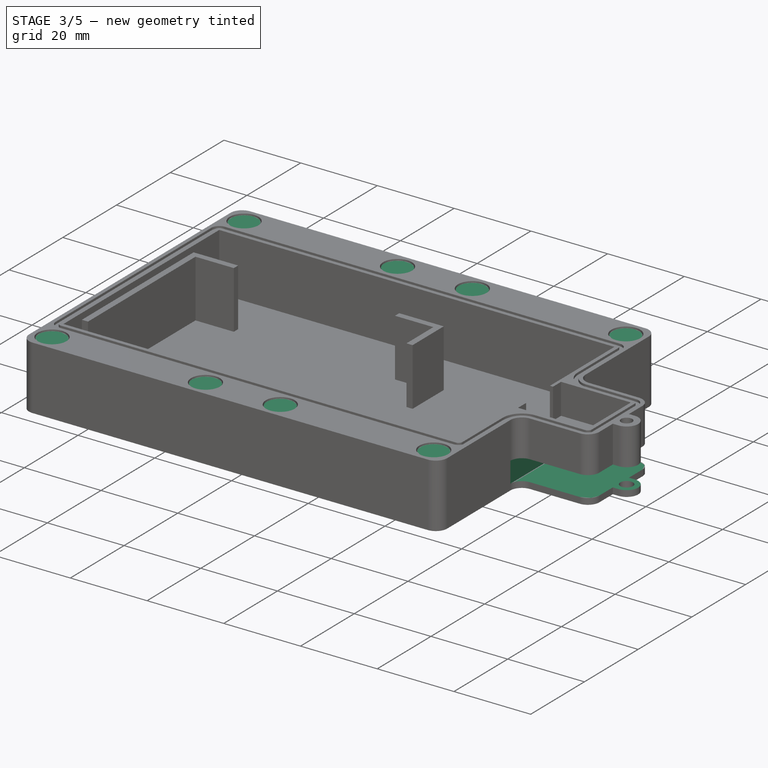
[diagram: stage 3 of 5 — iso view after this stage's code; geometry added in this stage tinted green]
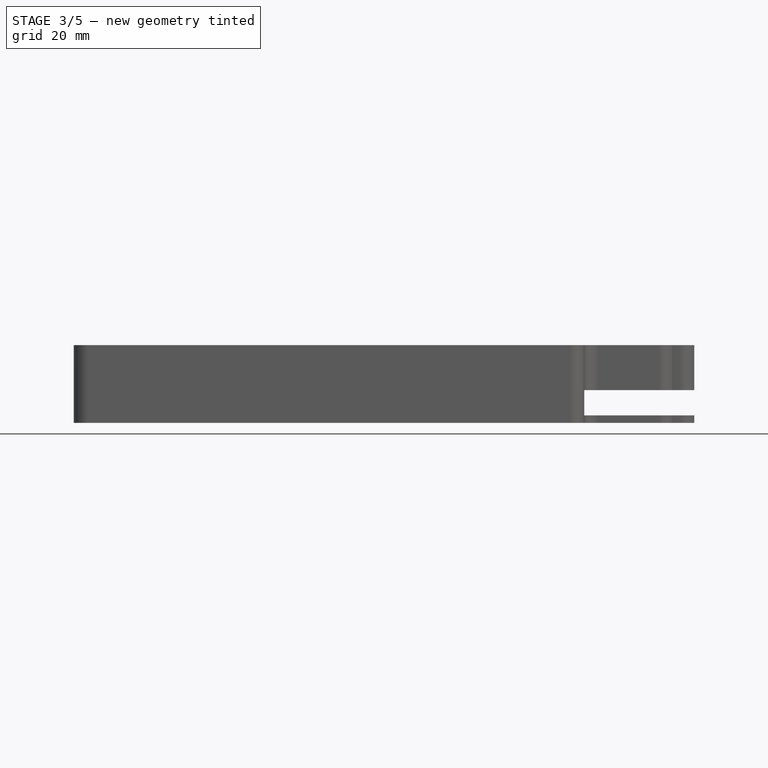
[diagram: stage 3 of 5 — front view after this stage's code; geometry added in this stage tinted green]
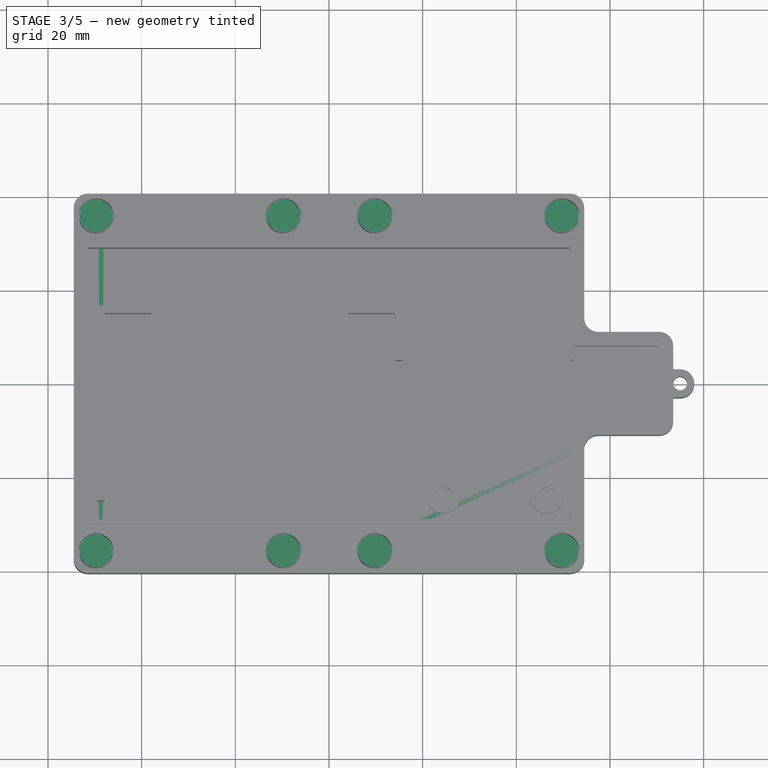
[diagram: stage 3 of 5 — top view after this stage's code; geometry added in this stage tinted green]
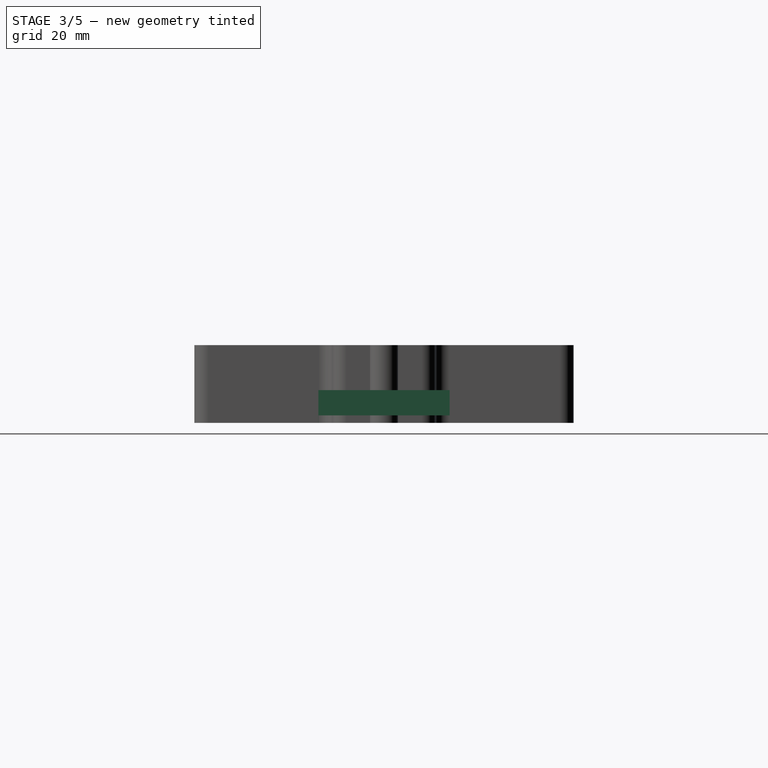
[diagram: stage 3 of 5 — right view after this stage's code; geometry added in this stage tinted green]
FEATURE [PartDesign::Body] Body001  label="Brace"
  Group = -> [Sketch005,Pad003,Sketch006,Pad004,Hole001]
  Origin = -> Origin001
  Placement = pos=(0,36,-32) rot=(0,0,1;0rad)
  Tip = -> Hole001
FEATURE [Sketcher::SketchObject] Sketch007  label="LidBaseSketch"
  FullyConstrained = true
  MapMode = 5
  Support = -> [XY_Plane002]
  expr: Constraints[23] = <<RAKTrackerSheet>>.BoxCornerRadius
  expr: Constraints[4] = <<RAKTrackerSheet>>.BoxHeight
  expr: Constraints[58] = <<RAKTrackerSheet>>.BoxCornerRadius
  expr: Constraints[59] = <<RAKTrackerSheet>>.BoxCornerRadius
  expr: Constraints[5] = <<RAKTrackerSheet>>.BoxWidth
  expr: Constraints[61] = <<RAKTrackerSheet>>.GPSWidthAndHeight + <<RAKTrackerSheet>>.BoxOuterwallShortThickness * 2
  expr: Constraints[62] = <<RAKTrackerSheet>>.BoxCornerRadius
  expr: Constraints[63] = <<RAKTrackerSheet>>.BoxCornerRadius
  expr: Constraints[64] = <<RAKTrackerSheet>>.GPSWidthAndHeight + <<RAKTrackerSheet>>.BoxOuterwallShortThickness
  expr: Constraints[67] = <<RAKTrackerSheet>>.BoxCornerRadius
  sketch-geometry (25):
    g0: LineSegment StartX=-51.5 StartY=40.5 StartZ=0 EndX=51.5 EndY=40.5 EndZ=0
    g1: LineSegment StartX=51.5 StartY=-40.5 StartZ=0 EndX=-51.5 EndY=-40.5 EndZ=0
    g2: LineSegment StartX=-54.5 StartY=-37.5 StartZ=0 EndX=-54.5 EndY=37.5 EndZ=0
    g3: ArcOfCircle CenterX=-51.5 CenterY=37.5 CenterZ=0 NormalX=0 NormalY=0 NormalZ=1 AngleXU=0 Radius=3 StartAngle=1.5708 EndAngle=3.14159
    g4: GeomPoint X=-54.5 Y=40.5 Z=0
    g5: ArcOfCircle CenterX=51.5 CenterY=37.5 CenterZ=0 NormalX=0 NormalY=0 NormalZ=1 AngleXU=0 Radius=3 StartAngle=-9e-16 EndAngle=1.5708
    g6: GeomPoint X=54.5 Y=40.5 Z=0
    g7: ArcOfCircle CenterX=51.5 CenterY=-37.5 CenterZ=0 NormalX=0 NormalY=0 NormalZ=1 AngleXU=0 Radius=3 StartAngle=4.71239 EndAngle=6.28319
    g8: GeomPoint X=54.5 Y=-40.5 Z=0
    g9: ArcOfCircle CenterX=-51.5 CenterY=-37.5 CenterZ=0 NormalX=0 NormalY=0 NormalZ=1 AngleXU=0 Radius=3 StartAngle=3.14159 EndAngle=4.71239
    g10: GeomPoint X=-54.5 Y=-40.5 Z=0
    g11: LineSegment StartX=54.5 StartY=37.5 StartZ=0 EndX=54.5 EndY=14 EndZ=0
    g12: LineSegment StartX=54.5 StartY=-14 StartZ=0 EndX=54.5 EndY=-37.5 EndZ=0
    g13: LineSegment StartX=57.5 StartY=11 StartZ=0 EndX=70.5 EndY=11 EndZ=0
    g14: LineSegment StartX=73.5 StartY=8 StartZ=0 EndX=73.5 EndY=3 EndZ=0
    g15: LineSegment StartX=70.5 StartY=-11 StartZ=0 EndX=57.5 EndY=-11 EndZ=0
    g16: LineSegment StartX=73.5 StartY=-3 StartZ=0 EndX=73.5 EndY=-8 EndZ=0
    g17: LineSegment StartX=73.5 StartY=3 StartZ=0 EndX=75 EndY=3 EndZ=0
    g18: LineSegment StartX=73.5 StartY=-3 StartZ=0 EndX=75 EndY=-3 EndZ=0
    g19: ArcOfCircle CenterX=75 CenterY=0 CenterZ=0 NormalX=0 NormalY=0 NormalZ=1 AngleXU=0 Radius=3 StartAngle=4.71239 EndAngle=7.85398
    g20: ArcOfCircle CenterX=70.5 CenterY=8 CenterZ=0 NormalX=0 NormalY=0 NormalZ=1 AngleXU=0 Radius=3 StartAngle=0 EndAngle=1.5708
    g21: ArcOfCircle CenterX=57.5 CenterY=14 CenterZ=0 NormalX=0 NormalY=0 NormalZ=1 AngleXU=0 Radius=3 StartAngle=3.14159 EndAngle=4.71239
    g22: ArcOfCircle CenterX=57.5 CenterY=-14 CenterZ=0 NormalX=0 NormalY=0 NormalZ=1 AngleXU=0 Radius=3 StartAngle=1.5708 EndAngle=3.14159
    g23: ArcOfCircle CenterX=70.5 CenterY=-8 CenterZ=0 NormalX=0 NormalY=0 NormalZ=1 AngleXU=0 Radius=3 StartAngle=4.71239 EndAngle=6.28319
    g24: Circle CenterX=75 CenterY=0 CenterZ=0 NormalX=0 NormalY=0 NormalZ=1 AngleXU=0 Radius=1.65
  constraints (70):
    c: Horizontal(g0)
    c: Horizontal(g1)
    c: Vertical(g2)
    c: Symmetric(g4,g8,g-1)
    c: DistanceX(g4,g6) = 109
    c: DistanceY(g8,g6) = 81
    c: PointOnObject(g4,g0)
    c: PointOnObject(g4,g2)
    c: Tangent(g0,g3) = 1.5708
    c: Tangent(g2,g3) = 1.5708
    c: PointOnObject(g6,g0)
    c: Tangent(g0,g5) = 1.5708
    c: Tangent(g11,g5) = 1.5708
    c: PointOnObject(g8,g1)
    c: Tangent(g12,g7) = 1.5708
    c: Tangent(g1,g7) = 1.5708
    c: PointOnObject(g10,g2)
    c: PointOnObject(g10,g1)
    c: Tangent(g2,g9) = 1.5708
    c: Tangent(g1,g9) = 1.5708
    c: Equal(g3,g5)
    c: Equal(g3,g7)
    c: Equal(g3,g9)
    c: Radius(g3) = 3
    c: Vertical(g11)
    c: PointOnObject(g6,g11)
    c: Vertical(g12)
    c: PointOnObject(g8,g12)
    c: Horizontal(g13)
    c: Vertical(g14)
    c: Vertical(g16)
    c: Horizontal(g15)
    c: Coincident(g17,g14)
    c: Coincident(g18,g16)
    c: Horizontal(g17)
    c: Horizontal(g18)
    c: Coincident(g19,g17)
    c: Coincident(g19,g18)
    c: Coincident(g20,g13)
    c: Coincident(g20,g14)
    c: Coincident(g21,g11)
    c: Coincident(g21,g13)
    c: Coincident(g22,g15)
    c: Coincident(g22,g12)
    c: Coincident(g23,g15)
    c: Coincident(g23,g16)
    c: Vertical(g14,g16)
    c: Horizontal(g11,g21)
    c: Vertical(g21,g13)
    c: Vertical(g13,g20)
    c: Horizontal(g14,g20)
    c: Vertical(g17,g19)
    c: Vertical(g19,g18)
    c: Horizontal(g16,g23)
    c: Vertical(g15,g23)
    c: Vertical(g22,g15)
    c: Horizontal(g12,g22)
    c: Vertical(g11,g12)
    c: Radius(g21) = 3
    c: Radius(g20) = 3
    c: PointOnObject(g19,g-1)
    c: DistanceY(g15,g13) = 22
    c: Radius(g23) = 3
    c: Radius(g22) = 3
    c: DistanceX(g11,g14) = 19
    c: Equal(g11,g12)
    c: DistanceX(g17,g17) = 1.5
    c: Radius(g19) = 3
    c: Coincident(g24,g19)
    c: Diameter(g24) = 3.3
FEATURE [PartDesign::Pad] Pad005  label="LidBase"
  Direction = (0,0,1)
  Length = 1.6
  Length2 = 10
  Profile = -> Sketch007
  ReferenceAxis = -> Sketch007 [N_Axis]
  Type = 0
  expr: Length = <<RAKTrackerSheet>>.BoxBottomThickness
FEATURE [Sketcher::SketchObject] Sketch008  label="LidScrewHoleSketch"
  ExternalGeometry = -> [Sketch007]
  FullyConstrained = true
  MapMode = 5
  Support = -> [XY_Plane002]
  expr: Constraints[10] = <<RAKTrackerSheet>>.StrapDistance
  expr: Constraints[18] = <<RAKTrackerSheet>>.LidHoleDia
  expr: Constraints[19] = <<RAKTrackerSheet>>.StrapDistance
  expr: Constraints[20] = <<RAKTrackerSheet>>.BoxLidHoleSize / 2 + Spreadsheet.WallThicknessNextToLidHole
  expr: Constraints[21] = <<RAKTrackerSheet>>.BoxLidHoleSize / 2 + Spreadsheet.WallThicknessNextToLidHole
  expr: Constraints[22] = <<RAKTrackerSheet>>.BoxLidHoleSize / 2 + Spreadsheet.WallThicknessNextToLidHole
  expr: Constraints[23] = <<RAKTrackerSheet>>.BoxWidth - <<RAKTrackerSheet>>.BoxLidHoleSize - <<RAKTrackerSheet>>.WallThicknessNextToLidHole * 2
  sketch-geometry (8):
    g0: Circle CenterX=-49.75 CenterY=35.75 CenterZ=0 NormalX=0 NormalY=0 NormalZ=1 AngleXU=0 Radius=3.55
    g1: Circle CenterX=-9.75 CenterY=35.75 CenterZ=0 NormalX=0 NormalY=0 NormalZ=1 AngleXU=0 Radius=3.55
    g2: Circle CenterX=9.75 CenterY=35.75 CenterZ=0 NormalX=0 NormalY=0 NormalZ=1 AngleXU=0 Radius=3.55
    g3: Circle CenterX=49.75 CenterY=35.75 CenterZ=0 NormalX=0 NormalY=0 NormalZ=1 AngleXU=0 Radius=3.55
    g4: Circle CenterX=49.75 CenterY=-35.75 CenterZ=0 NormalX=0 NormalY=0 NormalZ=1 AngleXU=0 Radius=3.55
    g5: Circle CenterX=9.75 CenterY=-35.75 CenterZ=0 NormalX=0 NormalY=0 NormalZ=1 AngleXU=0 Radius=3.55
    g6: Circle CenterX=-9.75 CenterY=-35.75 CenterZ=0 NormalX=0 NormalY=0 NormalZ=1 AngleXU=0 Radius=3.55
    g7: Circle CenterX=-49.75 CenterY=-35.75 CenterZ=0 NormalX=0 NormalY=0 NormalZ=1 AngleXU=0 Radius=3.55
  constraints (24):
    c: Horizontal(g0,g1)
    c: Horizontal(g1,g2)
    c: Horizontal(g2,g3)
    c: Horizontal(g7,g6)
    c: Horizontal(g6,g4)
    c: Horizontal(g4,g5)
    c: Vertical(g0,g7)
    c: Vertical(g1,g6)
    c: Vertical(g2,g5)
    c: Vertical(g4,g3)
    c: DistanceX(g0,g1) = 40
    c: Equal(g0,g7)
    c: Equal(g0,g1)
    c: Equal(g0,g6)
    c: Equal(g0,g5)
    c: Equal(g0,g2)
    c: Equal(g0,g3)
    c: Equal(g0,g4)
    c: Diameter(g0) = 7.1
    c: DistanceX(g2,g3) = 40
    c: DistanceX(g4,g-9) = 4.75
    c: DistanceY(g0,g-4) = 4.75
    c: DistanceX(g-5,g0) = 4.75
    c: DistanceY(g7,g0) = 71.5
FEATURE [PartDesign::Pad] Pad006  label="LidScrewHoles"
  BaseFeature = -> Pad005
  Direction = (0,0,1)
  Length = 16.3
  Length2 = 10
  Profile = -> Sketch008
  ReferenceAxis = -> Sketch008 [N_Axis]
  Type = 0
  expr: Length = <<RAKTrackerSheet>>.LidHoleLength + <<RAKTrackerSheet>>.BoxBottomThickness
FEATURE [PartDesign::Hole] Hole  label="BoxLidHolesThrough"
  BaseFeature = -> Pocket004
  CustomThreadClearance = 0
  Depth = 317.166
  DepthType = 1
  Diameter = 3.5
  DrillForDepth = false
  DrillPoint = 1
  DrillPointAngle = 118
  HoleCutCountersinkAngle = 90
  HoleCutCustomValues = false
  HoleCutDepth = 0
  HoleCutDiameter = 6.1
  HoleCutType = 0
  ModelThread = false
  Profile = -> Sketch013
  Tapered = false
  TaperedAngle = 90
  ThreadClass = 0
  ThreadDepth = 317.166
  ThreadDepthType = 0
  ThreadDirection = 0
  ThreadFit = 0
  ThreadSize = 0
  ThreadType = 0
  Threaded = false
  UseCustomThreadClearance = false
  expr: Diameter = <<RAKTrackerSheet>>.BoxLidThrougHoleDia
FEATURE [Sketcher::SketchObject] Sketch014
  ExternalGeometry = -> [Sketch001]
  FullyConstrained = true
  MapMode = 5
  Support = -> [XY_Plane]
  sketch-geometry (4):
    g0: LineSegment StartX=79.5 StartY=14 StartZ=0 EndX=54.5 EndY=14 EndZ=0
    g1: LineSegment StartX=54.5 StartY=14 StartZ=0 EndX=54.5 EndY=-14 EndZ=0
    g2: LineSegment StartX=54.5 StartY=-14 StartZ=0 EndX=79.5 EndY=-14 EndZ=0
    g3: LineSegment StartX=79.5 StartY=-14 StartZ=0 EndX=79.5 EndY=14 EndZ=0
  constraints (10):
    c: Coincident(g0,g1)
    c: Coincident(g1,g2)
    c: Coincident(g2,g3)
    c: Coincident(g3,g0)
    c: Horizontal(g0)
    c: Horizontal(g2)
    c: Vertical(g3)
    c: Coincident(g0,g-3)
    c: Coincident(g1,g-4)
    c: DistanceX(g0,g0) = 25
FEATURE [PartDesign::Pocket] Pocket005  label="GPSMountBottomRemoved"
  BaseFeature = -> Hole
  Direction = (0,0,-1)
  Length = 7
  Length2 = 5
  Profile = -> Sketch014
  ReferenceAxis = -> Sketch014 [N_Axis]
  Reversed = true
  Type = 0
  expr: Length = <<RAKTrackerSheet>>.BoxDepth - <<RAKTrackerSheet>>.GPSDepth - <<RAKTrackerSheet>>.BoxBottomThickness
FEATURE [PartDesign::Body] Body  label="Box"
  Group = -> [Sketch,Pad,Sketch001,Pad001,Sketch002,Pad002,DatumPlane,Sketch004,Pocket001,Sketch012,Pocket,Sketch013,Pocket004,Hole,Sketch014,Pocket005]
  Origin = -> Origin
  Tip = -> Pocket005
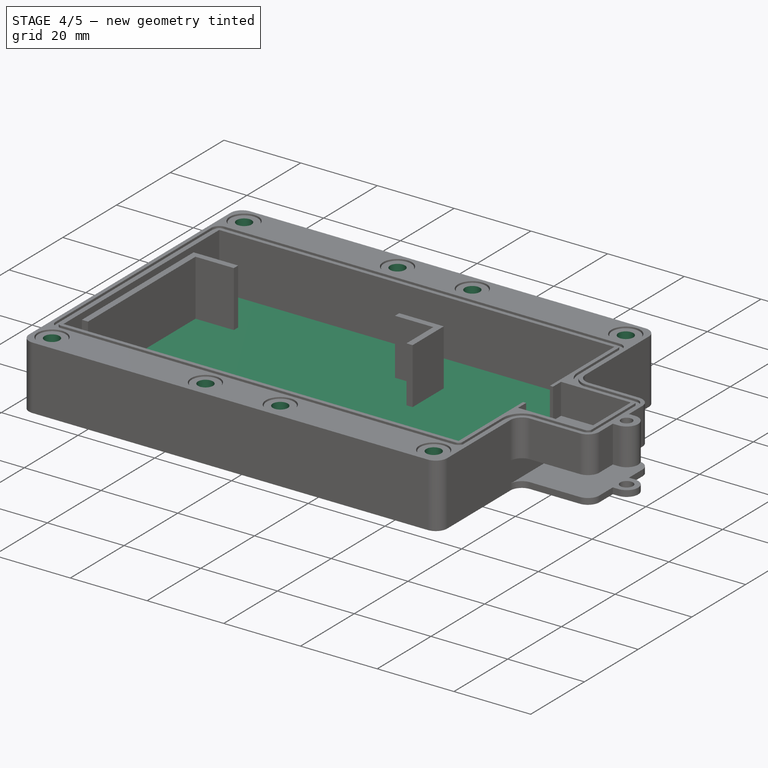
[diagram: stage 4 of 5 — iso view after this stage's code; geometry added in this stage tinted green]
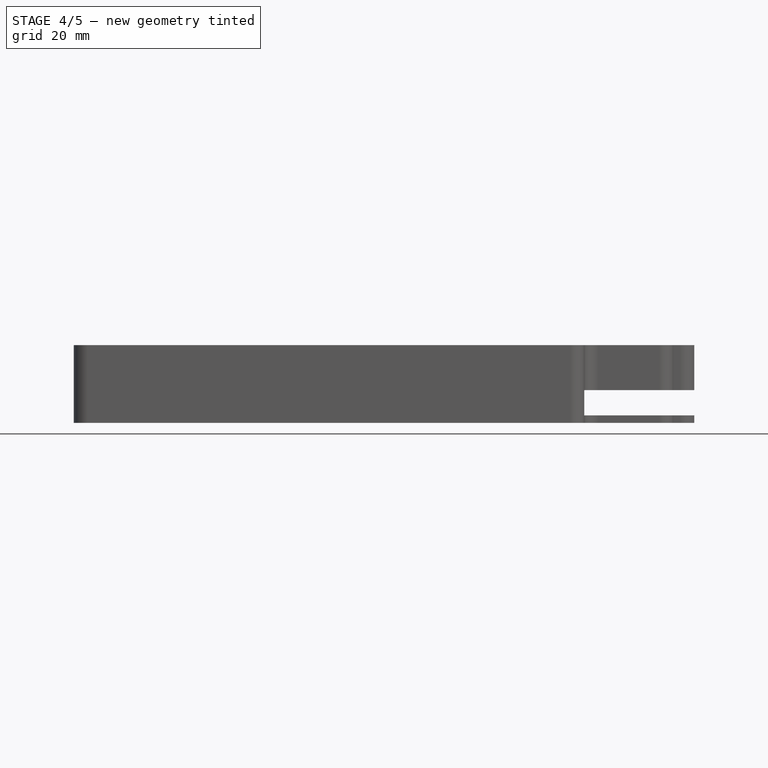
[diagram: stage 4 of 5 — front view after this stage's code; geometry added in this stage tinted green]
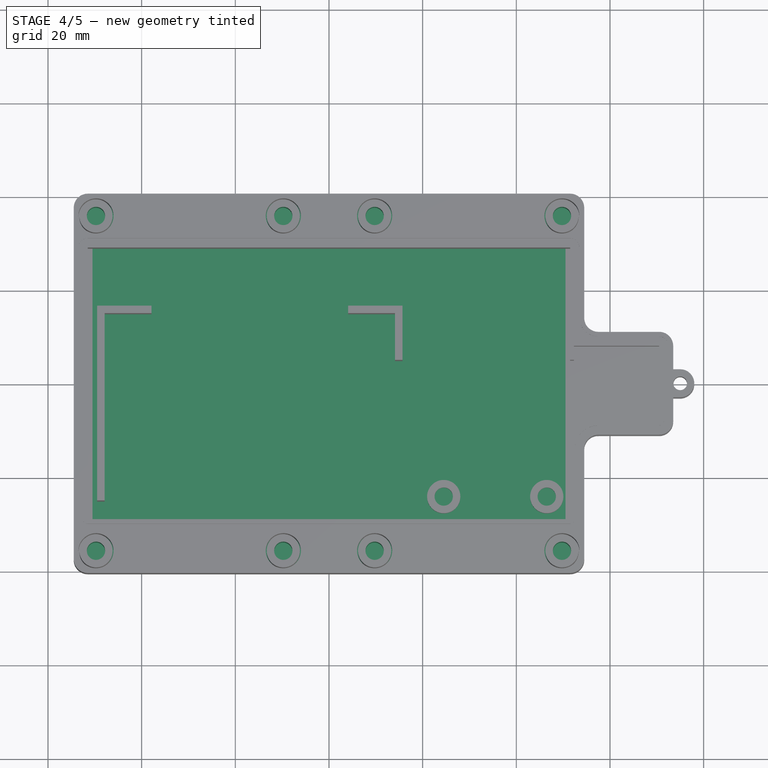
[diagram: stage 4 of 5 — top view after this stage's code; geometry added in this stage tinted green]
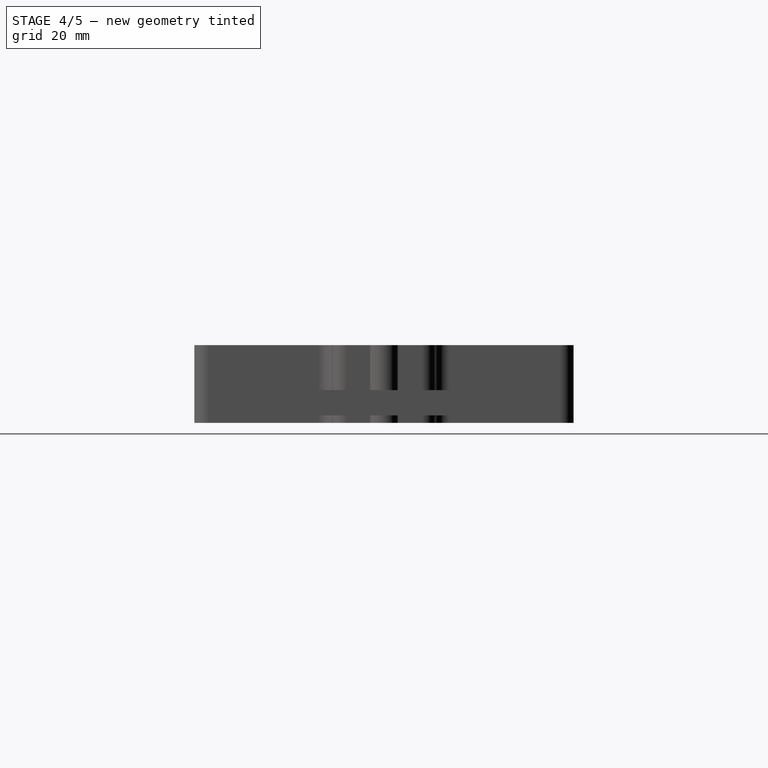
[diagram: stage 4 of 5 — right view after this stage's code; geometry added in this stage tinted green]
FEATURE [PartDesign::Plane] DatumPlane001  label="TopOfLid"
  Length = 153.196
  Placement = pos=(0,0,16.3) rot=(0,0,1;0rad)
  ResizeMode = 0
  Width = 101.718
  expr: .Placement.Base.z = <<LidScrewHoles>>.Length
FEATURE [Sketcher::SketchObject] Sketch009
  ExternalGeometry = -> [Sketch008]
  FullyConstrained = true
  MapMode = 5
  Placement = pos=(0,0,16.3) rot=(0,0,1;0rad)
  Support = -> [DatumPlane001]
  expr: Constraints[15] = <<RAKTrackerSheet>>.PCBMountHoleDia
  sketch-geometry (8):
    g0: Circle CenterX=-49.75 CenterY=35.75 CenterZ=0 NormalX=0 NormalY=0 NormalZ=1 AngleXU=0 Radius=1.95
    g1: Circle CenterX=-9.75 CenterY=35.75 CenterZ=0 NormalX=0 NormalY=0 NormalZ=1 AngleXU=0 Radius=1.95
    g2: Circle CenterX=9.75 CenterY=35.75 CenterZ=0 NormalX=0 NormalY=0 NormalZ=1 AngleXU=0 Radius=1.95
    g3: Circle CenterX=49.75 CenterY=35.75 CenterZ=0 NormalX=0 NormalY=0 NormalZ=1 AngleXU=0 Radius=1.95
    g4: Circle CenterX=-49.75 CenterY=-35.75 CenterZ=0 NormalX=0 NormalY=0 NormalZ=1 AngleXU=0 Radius=1.95
    g5: Circle CenterX=-9.75 CenterY=-35.75 CenterZ=0 NormalX=0 NormalY=0 NormalZ=1 AngleXU=0 Radius=1.95
    g6: Circle CenterX=9.75 CenterY=-35.75 CenterZ=0 NormalX=0 NormalY=0 NormalZ=1 AngleXU=0 Radius=1.95
    g7: Circle CenterX=49.75 CenterY=-35.75 CenterZ=0 NormalX=0 NormalY=0 NormalZ=1 AngleXU=0 Radius=1.95
  constraints (10):
    c: Coincident(g0,g-3)
    c: Coincident(g1,g-4)
    c: Coincident(g2,g-5)
    c: Coincident(g3,g-6)
    c: Coincident(g4,g-10)
    c: Coincident(g5,g-9)
    c: Coincident(g6,g-8)
    c: Coincident(g7,g-7)
    c: Equal(g0, g1-g7) x7
    c: Diameter(g0) = 3.9
FEATURE [PartDesign::Pocket] Pocket002  label="LidScrewHoleThread"
  BaseFeature = -> Pad006
  Direction = (0,0,-1)
  Length = 12
  Length2 = 5
  Profile = -> Sketch009
  ReferenceAxis = -> Sketch009 [N_Axis]
  Type = 0
  expr: Length = <<RAKTrackerSheet>>.LidThreadDepth
FEATURE [Sketcher::SketchObject] Sketch010
  FullyConstrained = true
  MapMode = 5
  Support = -> [XY_Plane003]
  expr: Constraints[10] = <<RAKTrackerSheet>>.SolarPanelWidth
  expr: Constraints[9] = <<RAKTrackerSheet>>.SolarPanelHeight
  sketch-geometry (4):
    g0: LineSegment StartX=-50.5 StartY=40.5 StartZ=0 EndX=50.5 EndY=40.5 EndZ=0
    g1: LineSegment StartX=50.5 StartY=40.5 StartZ=0 EndX=50.5 EndY=-40.5 EndZ=0
    g2: LineSegment StartX=50.5 StartY=-40.5 StartZ=0 EndX=-50.5 EndY=-40.5 EndZ=0
    g3: LineSegment StartX=-50.5 StartY=-40.5 StartZ=0 EndX=-50.5 EndY=40.5 EndZ=0
  constraints (11):
    c: Coincident(g0,g1)
    c: Coincident(g1,g2)
    c: Coincident(g2,g3)
    c: Coincident(g3,g0)
    c: Horizontal(g0)
    c: Horizontal(g2)
    c: Vertical(g1)
    c: Vertical(g3)
    c: Symmetric(g0,g1,g-1)
    c: DistanceX(g0,g0) = 101
    c: DistanceY(g1,g1) = 81
FEATURE [PartDesign::Pad] Pad007
  Direction = (0,0,1)
  Length = 2
  Length2 = 10
  Profile = -> Sketch010
  ReferenceAxis = -> Sketch010 [N_Axis]
  Type = 0
  expr: Length = <<RAKTrackerSheet>>.SolarPanelDepth
FEATURE [PartDesign::Body] Body003  label="SolarPanel"
  Group = -> [Sketch010,Pad007]
  Origin = -> Origin003
  Placement = pos=(1,0,117) rot=(0,0,1;0rad)
  Tip = -> Pad007
FEATURE [Sketcher::SketchObject] Sketch011  label="LidSolarPanelGapSketch"
  ExternalGeometry = -> [Sketch007]
  FullyConstrained = true
  MapMode = 5
  Support = -> [XY_Plane002]
  sketch-geometry (4):
    g0: ArcOfCircle CenterX=-25 CenterY=0 CenterZ=0 NormalX=0 NormalY=0 NormalZ=1 AngleXU=0 Radius=5 StartAngle=1.5708 EndAngle=4.71239
    g1: ArcOfCircle CenterX=25 CenterY=0 CenterZ=0 NormalX=0 NormalY=0 NormalZ=1 AngleXU=0 Radius=5 StartAngle=4.71239 EndAngle=7.85398
    g2: LineSegment StartX=-25 StartY=-5 StartZ=0 EndX=25 EndY=-5 EndZ=0
    g3: LineSegment StartX=25 StartY=5 StartZ=0 EndX=-25 EndY=5 EndZ=0
  constraints (9):
    c: Tangent(g0,g2) = -1.5708
    c: Tangent(g2,g1) = -1.5708
    c: Tangent(g1,g3) = -1.5708
    c: Tangent(g3,g0) = -1.5708
    c: Equal(g0,g1)
    c: PointOnObject(g0,g-1)
    c: DistanceY(g1,g1) = 10
    c: DistanceX(g0,g1) = 50
    c: Symmetric(g1,g0,g-1)
FEATURE [PartDesign::Pocket] Pocket003  label="LidSolarPanelGap"
  BaseFeature = -> Pocket002
  Direction = (0,0,-1)
  Length = 1.6
  Length2 = 5
  Profile = -> Sketch011
  ReferenceAxis = -> Sketch011 [N_Axis]
  Reversed = true
  Type = 0
  expr: Length = <<RAKTrackerSheet>>.BoxBottomThickness
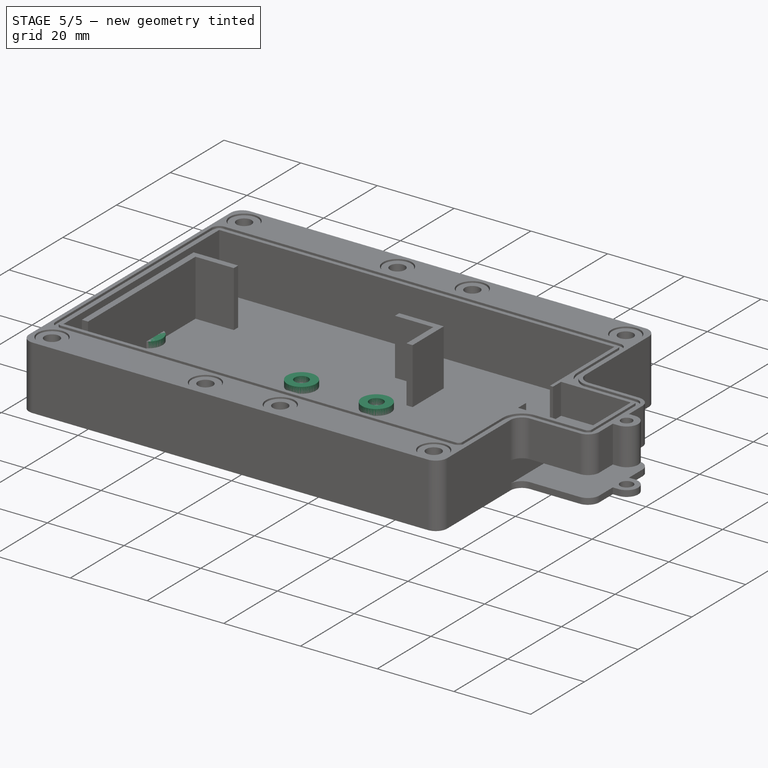
[diagram: stage 5 of 5 — iso view after this stage's code; geometry added in this stage tinted green]
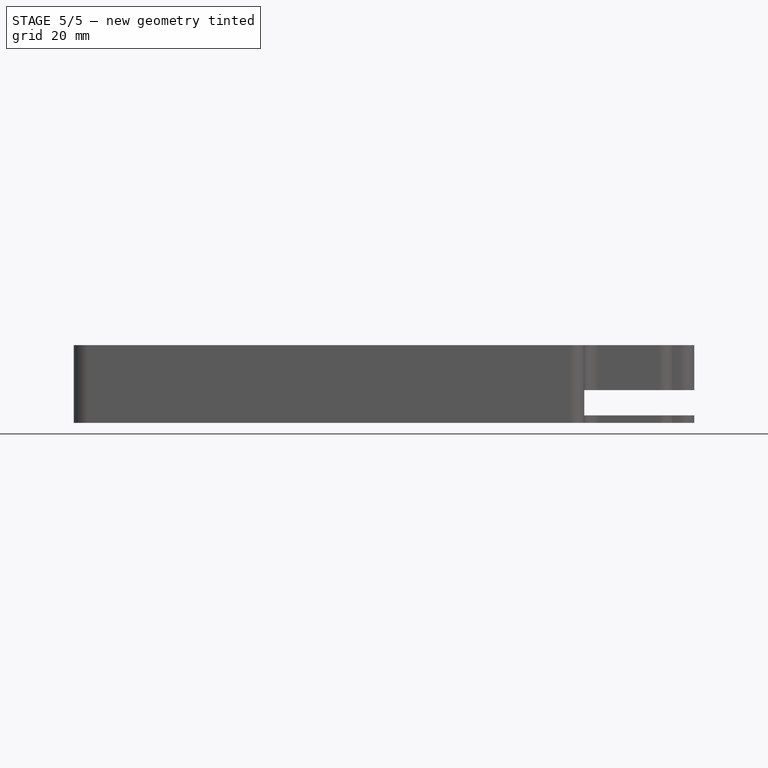
[diagram: stage 5 of 5 — front view after this stage's code; geometry added in this stage tinted green]
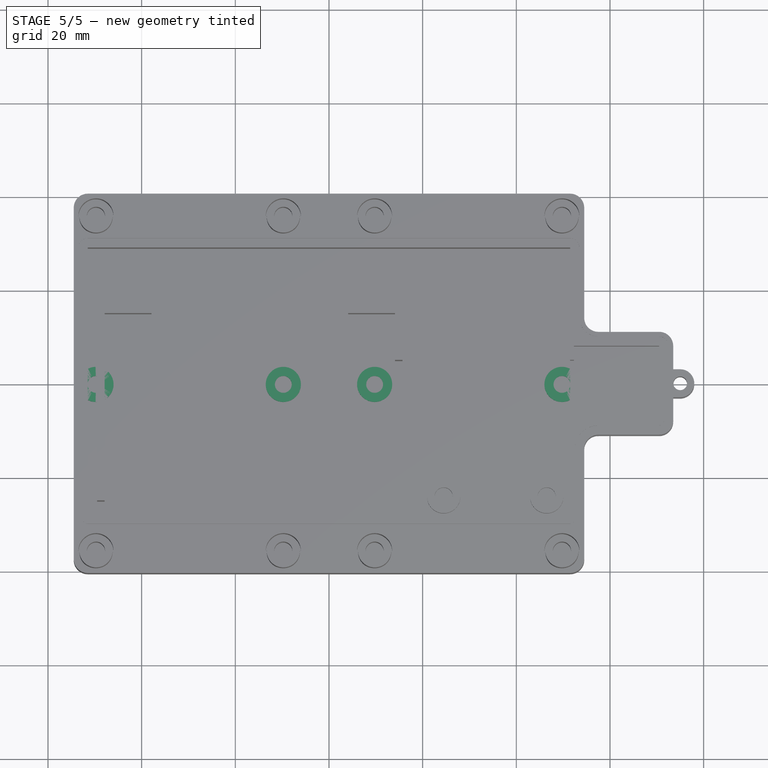
[diagram: stage 5 of 5 — top view after this stage's code; geometry added in this stage tinted green]
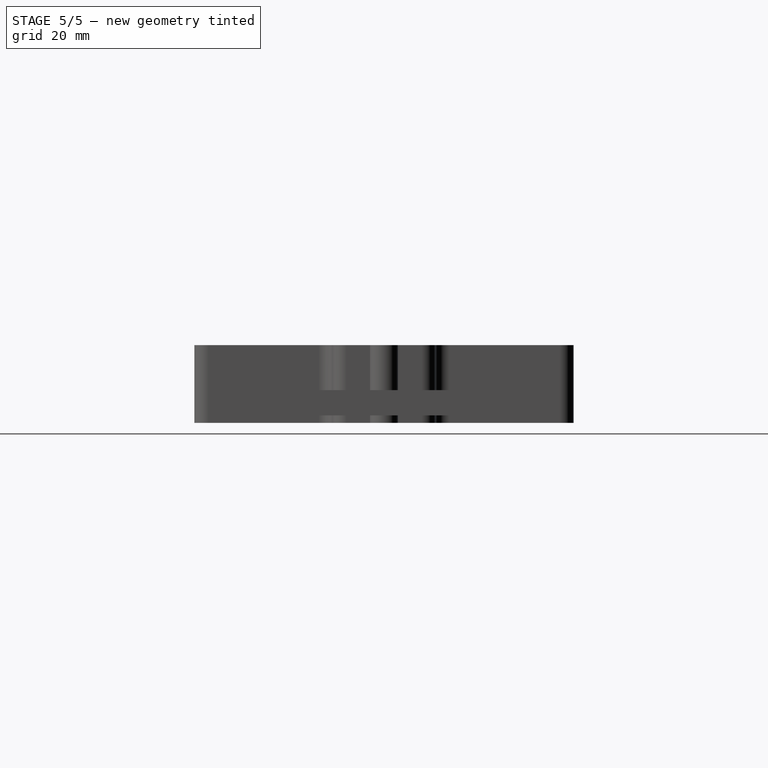
[diagram: stage 5 of 5 — right view after this stage's code; geometry added in this stage tinted green]
FEATURE [Sketcher::SketchObject] Sketch005  label="BraceBaseSketch"
  FullyConstrained = true
  MapMode = 5
  Support = -> [XY_Plane001]
  expr: Constraints[11] = <<RAKTrackerSheet>>.WallThicknessNextToLidHole * 2 + <<RAKTrackerSheet>>.BoxLidHoleSize
  expr: Constraints[12] = <<RAKTrackerSheet>>.BoxHeight - (<<RAKTrackerSheet>>.WallThicknessNextToLidHole * 2 + <<RAKTrackerSheet>>.BoxLidHoleSize)
  sketch-geometry (4):
    g0: LineSegment StartX=-49.75 StartY=4.75 StartZ=0 EndX=49.75 EndY=4.75 EndZ=0
    g1: LineSegment StartX=49.75 StartY=-4.75 StartZ=0 EndX=-49.75 EndY=-4.75 EndZ=0
    g2: ArcOfCircle CenterX=-49.75 CenterY=2e-16 CenterZ=0 NormalX=0 NormalY=0 NormalZ=1 AngleXU=0 Radius=4.75 StartAngle=1.5708 EndAngle=4.71239
    g3: ArcOfCircle CenterX=49.75 CenterY=2e-16 CenterZ=0 NormalX=0 NormalY=0 NormalZ=1 AngleXU=0 Radius=4.75 StartAngle=4.71239 EndAngle=7.85398
  constraints (13):
    c: Horizontal(g0)
    c: Horizontal(g1)
    c: Coincident(g2,g0)
    c: Coincident(g2,g1)
    c: Coincident(g3,g0)
    c: Coincident(g3,g1)
    c: Symmetric(g0,g1,g-1)
    c: Vertical(g0,g1)
    c: Vertical(g1,g3)
    c: Vertical(g0,g2)
    c: Vertical(g2,g1)
    c: DistanceY(g1,g0) = 9.5
    c: DistanceX(g0,g0) = 99.5
FEATURE [PartDesign::Pad] Pad003  label="BraceBase"
  Direction = (0,0,1)
  Length = 1.6
  Length2 = 10
  Profile = -> Sketch005
  ReferenceAxis = -> Sketch005 [N_Axis]
  Type = 0
  expr: Length = <<RAKTrackerSheet>>.BraceBaseThickness
FEATURE [Sketcher::SketchObject] Sketch006  label="BraceStandoffSketch"
  ExternalGeometry = -> [Sketch005]
  FullyConstrained = true
  MapMode = 5
  Support = -> [XY_Plane001]
  expr: Constraints[2] = <<RAKTrackerSheet>>.StrapDistance
  expr: Constraints[3] = <<RAKTrackerSheet>>.StrapDistance
  expr: Constraints[7] = <<RAKTrackerSheet>>.BoxLidHoleSize
  sketch-geometry (4):
    g0: Circle CenterX=-49.75 CenterY=4e-16 CenterZ=0 NormalX=0 NormalY=0 NormalZ=1 AngleXU=0 Radius=3.75
    g1: Circle CenterX=-9.75 CenterY=4e-16 CenterZ=0 NormalX=0 NormalY=0 NormalZ=1 AngleXU=0 Radius=3.75
    g2: Circle CenterX=9.75 CenterY=4e-16 CenterZ=0 NormalX=0 NormalY=0 NormalZ=1 AngleXU=0 Radius=3.75
    g3: Circle CenterX=49.75 CenterY=4e-16 CenterZ=0 NormalX=0 NormalY=0 NormalZ=1 AngleXU=0 Radius=3.75
  constraints (10):
    c: Horizontal(g0,g1)
    c: Horizontal(g1,g2)
    c: DistanceX(g0,g1) = 40
    c: DistanceX(g2,g3) = 40
    c: Equal(g0,g1)
    c: Equal(g0,g2)
    c: Equal(g0,g3)
    c: Diameter(g0) = 7.5
    c: Coincident(g3,g-4)
    c: Coincident(g0,g-3)
FEATURE [PartDesign::Pad] Pad004  label="BraceStandoff"
  BaseFeature = -> Pad003
  Direction = (0,0,1)
  Length = 3.6
  Length2 = 10
  Profile = -> Sketch006
  ReferenceAxis = -> Sketch006 [N_Axis]
  Type = 0
  expr: Length = <<RAKTrackerSheet>>.BraceBaseThickness + <<RAKTrackerSheet>>.BraceStrapThickness
FEATURE [PartDesign::Hole] Hole001  label="BraceScrewHoles"
  BaseFeature = -> Pad004
  CustomThreadClearance = 0
  Depth = 25
  DepthType = 0
  Diameter = 3.6
  DrillForDepth = false
  DrillPoint = 1
  DrillPointAngle = 118
  HoleCutCountersinkAngle = 90
  HoleCutCustomValues = false
  HoleCutDepth = 0
  HoleCutDiameter = 6.7
  HoleCutType = 2
  ModelThread = false
  Profile = -> Sketch006
  Reversed = true
  Tapered = false
  TaperedAngle = 90
  ThreadClass = 0
  ThreadDepth = 25
  ThreadDepthType = 0
  ThreadDirection = 0
  ThreadFit = 2
  ThreadSize = 9
  ThreadType = 1
  Threaded = false
  UseCustomThreadClearance = false
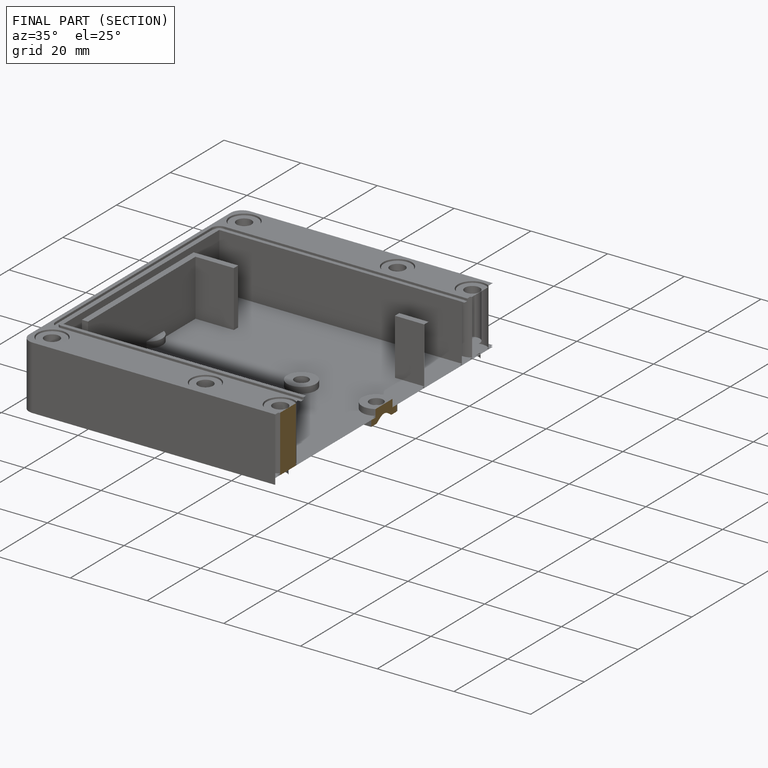
[diagram: finished part — half-section view (interior)]
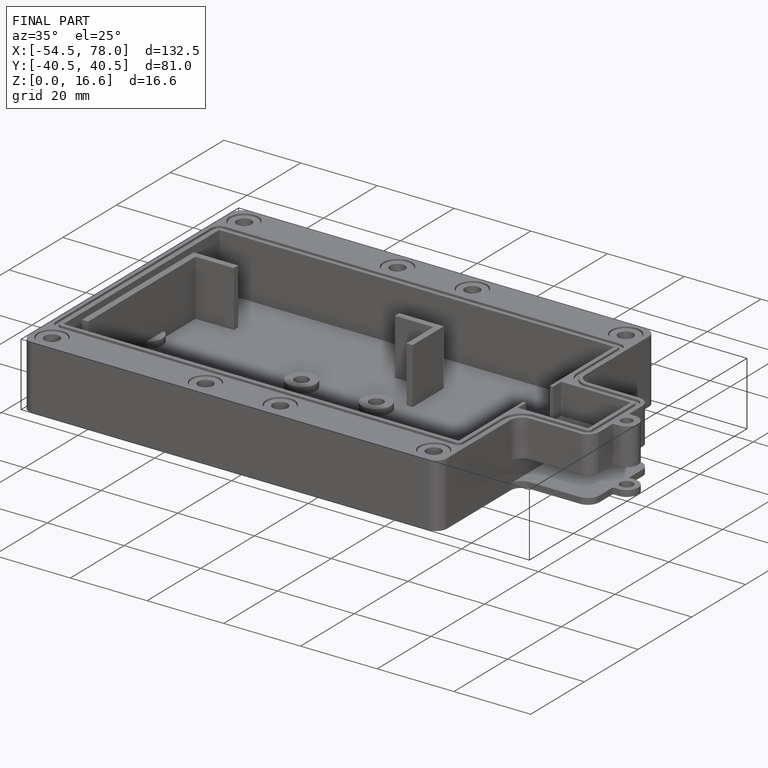
[diagram: finished part — iso view with bounding-box wireframe]
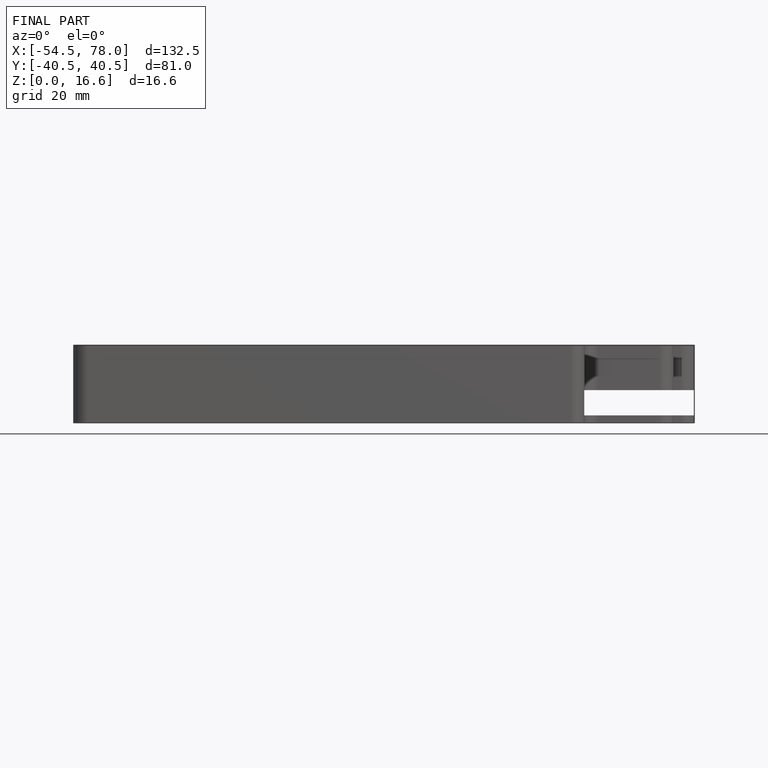
[diagram: finished part — front view with bounding-box wireframe]
